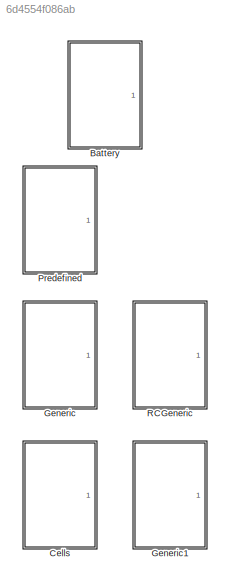
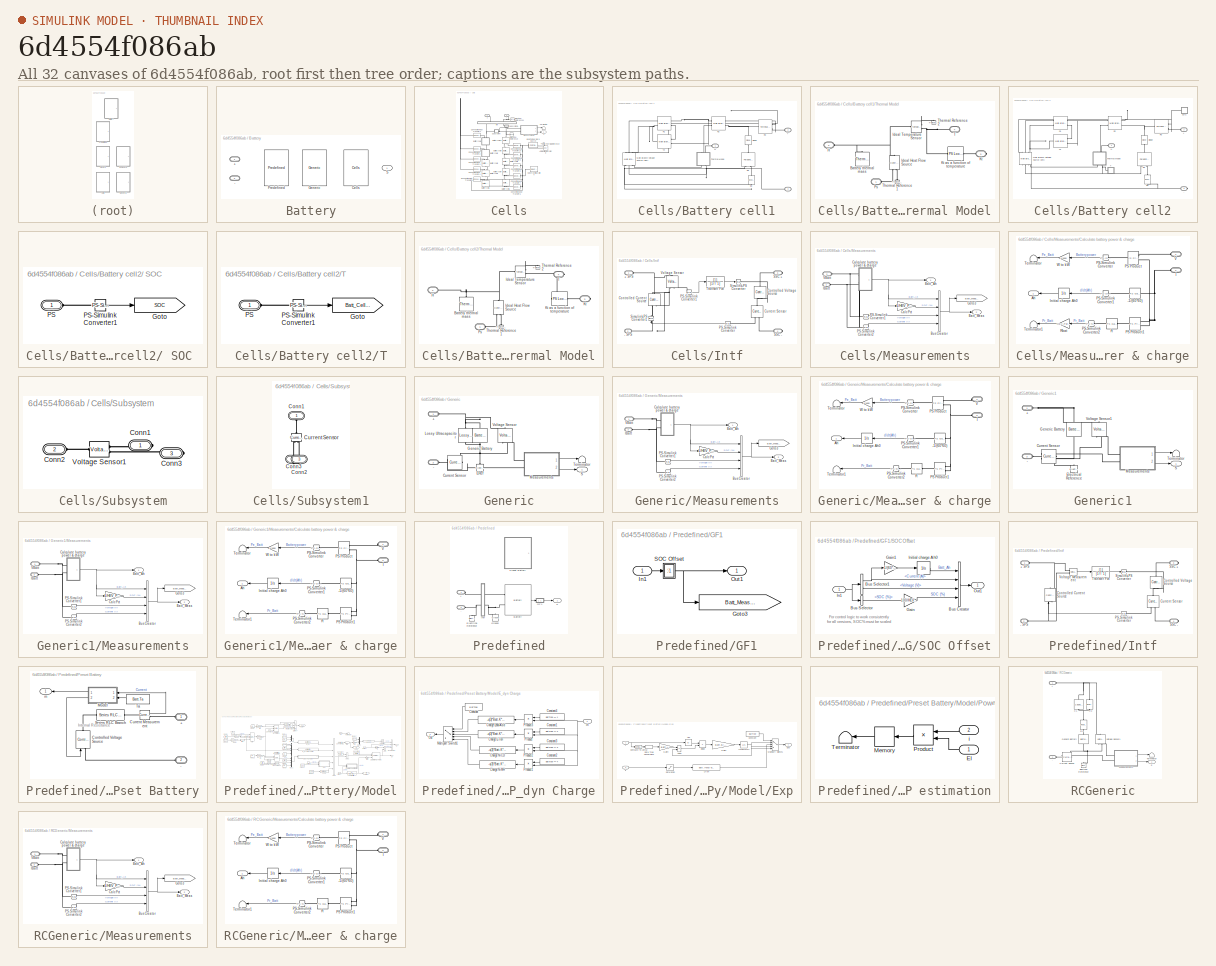
[diagram: thumbnail index - all 32 canvases of the model, root first then tree order]
MODEL slx_6d4554f086ab
KIND library
CONFIG AbsTol = auto
CONFIG EnableMultiTasking = on
CONFIG FixedStep = auto
CONFIG MaxStep = auto
CONFIG MinStep = auto
CONFIG RelTol = 1e-3
CONFIG SampleTimeConstraint = Unconstrained
CONFIG Solver = ode45
CONFIG SolverName = ode45
CONFIG StartTime = 0.0
CONFIG StopTime = 10.0
BLOCK [SubSystem] Battery
  BlockChoice = Predefined
  LabelModeActiveChoice = Predefined
  Ports = [0, 1, 0, 0, 0, 2]
  RequestExecContextInheritance = off
  Variant = on
  VariantControlMode = Label
BLOCK [PMIOPort] Battery/+
  NameLocation = top
  Side = Left
BLOCK [PMIOPort] Battery/-
  NameLocation = top
  Port = 2
  Side = Left
BLOCK [Reference] Battery/Cells  REF=$bdroot/Cells
  Ports = [0, 1, 0, 0, 0, 2]
  SourceBlock = $bdroot/Cells
BLOCK [Reference] Battery/Generic  REF=$bdroot/Generic
  Ports = [0, 1, 0, 0, 0, 2]
  SourceBlock = $bdroot/Generic
BLOCK [Reference] Battery/Predefined  REF=$bdroot/Predefined
  Ports = [0, 1, 0, 0, 0, 2]
  SourceBlock = $bdroot/Predefined
BLOCK [Outport] Battery/S
  VectorParamsAs1DForOutWhenUnconnected = off
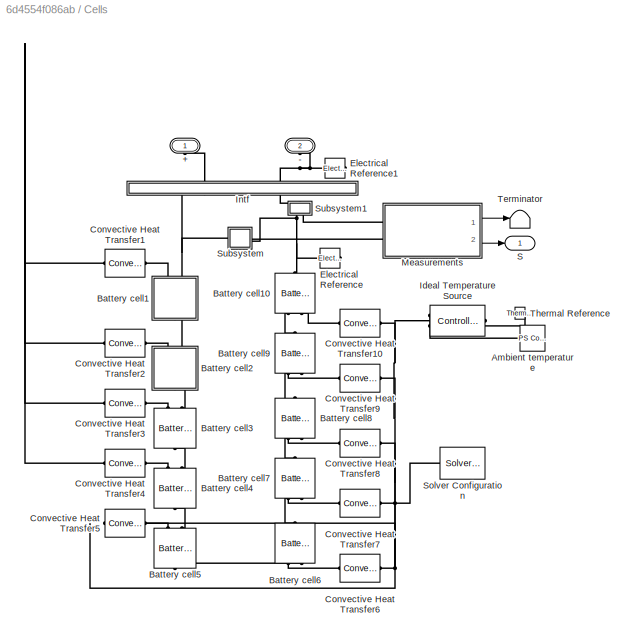
BLOCK [SubSystem] Cells
  Ports = [0, 1, 0, 0, 0, 2]
  RequestExecContextInheritance = off
BLOCK [PMIOPort] Cells/+
  NameLocation = right
  Side = Left
BLOCK [PMIOPort] Cells/-
  NameLocation = right
  Port = 2
  Side = Left
BLOCK [Reference] Cells/Ambient temperature  REF=fl_lib/Physical Signals/Sources/PS Constant
  Ports = [0, 0, 0, 0, 0, 0, 1]
  SourceBlock = fl_lib/Physical Signals/Sources/PS Constant
  SourceProductBaseCode = SS
  SourceType = PS Constant
BLOCK [SubSystem] Cells/Battery cell1
  NameLocation = left
  Ports = [0, 0, 0, 0, 0, 2, 1]
  RequestExecContextInheritance = off
BLOCK [PMIOPort] Cells/Battery cell1/+
  Port = 2
  Side = Left
  Tag = PMCPort
BLOCK [PMIOPort] Cells/Battery cell1/-
  Port = 3
  Side = Right
  Tag = PMCPort
BLOCK [Reference] Cells/Battery cell1/C1  REF=LeadAcidBattery_lib/Main Branch
Capacitance, C1
  Ports = [0, 0, 0, 0, 0, 2, 1]
  SourceBlock = LeadAcidBattery_lib/Main Branch\nCapacitance, C1
  SourceProductBaseCode = SS
  SourceType = Main Branch\nCapacitance, C1
BLOCK [Reference] Cells/Battery cell1/Diode  REF=fl_lib/Electrical/Electrical Elements/Diode
  NameLocation = left
  Ports = [0, 0, 0, 0, 0, 1, 1]
  SourceBlock = fl_lib/Electrical/Electrical Elements/Diode
  SourceProductBaseCode = SS
  SourceType = Diode
BLOCK [Reference] Cells/Battery cell1/Ep  REF=fl_lib/Electrical/Electrical Sources/DC Voltage Source
  NameLocation = right
  Ports = [0, 0, 0, 0, 0, 1, 1]
  SourceBlock = fl_lib/Electrical/Electrical Sources/DC Voltage Source
  SourceProductBaseCode = SS
  SourceType = DC Voltage Source
BLOCK [PMIOPort] Cells/Battery cell1/H
  Side = Left
  Tag = PMCPort
BLOCK [Reference] Cells/Battery cell1/Main Branch Voltage Source (Em)  REF=LeadAcidBattery_lib/Main Branch Voltage
Source, Em
  NameLocation = right
  Ports = [0, 0, 0, 0, 0, 3, 3]
  SourceBlock = LeadAcidBattery_lib/Main Branch Voltage\nSource, Em
  SourceProductBaseCode = SS
  SourceType = Main Branch Voltage\nSource, Em
BLOCK [Reference] Cells/Battery cell1/R0  REF=LeadAcidBattery_lib/Terminal Resistance,
R0
  Ports = [0, 0, 0, 0, 0, 2, 1]
  SourceBlock = LeadAcidBattery_lib/Terminal Resistance,\nR0
  SourceProductBaseCode = SS
  SourceType = Terminal Resistance,\nR0
BLOCK [Reference] Cells/Battery cell1/R1  REF=LeadAcidBattery_lib/Main Branch
Resistance, R1
  Ports = [0, 0, 0, 0, 0, 2, 2]
  SourceBlock = LeadAcidBattery_lib/Main Branch\nResistance, R1
  SourceProductBaseCode = SS
  SourceType = Main Branch\nResistance, R1
BLOCK [Reference] Cells/Battery cell1/R2  REF=LeadAcidBattery_lib/Main Branch
Resistance, R2
  Ports = [0, 0, 0, 0, 0, 2, 2]
  SourceBlock = LeadAcidBattery_lib/Main Branch\nResistance, R2
  SourceProductBaseCode = SS
  SourceType = Main Branch\nResistance, R2
BLOCK [Reference] Cells/Battery cell1/Rp  REF=LeadAcidBattery_lib/Parasitic Branch
Resistance, Rp
  NameLocation = left
  Ports = [0, 0, 0, 0, 0, 1, 2]
  SourceBlock = LeadAcidBattery_lib/Parasitic Branch\nResistance, Rp
  SourceProductBaseCode = SS
  SourceType = Parasitic Branch\nResistance, Rp
BLOCK [SubSystem] Cells/Battery cell1/Thermal Model
  NameLocation = right
  Ports = [0, 0, 0, 0, 0, 2, 2]
  RequestExecContextInheritance = off
BLOCK [Reference] Cells/Battery cell1/Thermal Model/Battery thermal mass  REF=fl_lib/Thermal/Thermal Elements/Thermal Mass
  NameLocation = left
  Ports = [0, 0, 0, 0, 0, 1]
  SourceBlock = fl_lib/Thermal/Thermal Elements/Thermal Mass
  SourceProductBaseCode = SS
  SourceType = Thermal Mass
BLOCK [PMIOPort] Cells/Battery cell1/Thermal Model/H
  Port = 2
  Side = Left
  Tag = PMCPort
BLOCK [Reference] Cells/Battery cell1/Thermal Model/Ideal Heat Flow Source  REF=fl_lib/Thermal/Thermal Sources/Controlled Heat Flow
Rate Source
  NameLocation = right
  Ports = [0, 0, 0, 0, 0, 1, 2]
  SourceBlock = fl_lib/Thermal/Thermal Sources/Controlled Heat Flow\nRate Source
  SourceProductBaseCode = SS
  SourceType = Controlled Heat Flow\nRate Source
BLOCK [Reference] Cells/Battery cell1/Thermal Model/Ideal Temperature Sensor  REF=fl_lib/Thermal/Thermal Sensors/Temperature Sensor
  Ports = [0, 0, 0, 0, 0, 1, 2]
  SourceBlock = fl_lib/Thermal/Thermal Sensors/Temperature Sensor
  SourceProductBaseCode = SS
  SourceType = Temperature Sensor
BLOCK [PMIOPort] Cells/Battery cell1/Thermal Model/Kt
  Port = 3
  Side = Right
  Tag = PMCPort
BLOCK [Reference] Cells/Battery cell1/Thermal Model/Kt as a function of temperature  REF=fl_lib/Physical Signals/Lookup Tables/PS Lookup Table (1D)
  Ports = [0, 0, 0, 0, 0, 1, 1]
  SourceBlock = fl_lib/Physical Signals/Lookup Tables/PS Lookup Table (1D)
  SourceProductBaseCode = SS
  SourceType = PS Lookup Table (1D)
BLOCK [PMIOPort] Cells/Battery cell1/Thermal Model/Ps
  Side = Left
  Tag = PMCPort
BLOCK [PMIOPort] Cells/Battery cell1/Thermal Model/T
  Port = 4
  Side = Right
  Tag = PMCPort
BLOCK [Reference] Cells/Battery cell1/Thermal Model/Thermal Reference1  REF=fl_lib/Thermal/Thermal Elements/Thermal Reference
  NameLocation = right
  Ports = [0, 0, 0, 0, 0, 1]
  SourceBlock = fl_lib/Thermal/Thermal Elements/Thermal Reference
  SourceProductBaseCode = SS
  SourceType = Thermal Reference
BLOCK [Reference] Cells/Battery cell1/Thermal Model/Thermal Reference2  REF=fl_lib/Thermal/Thermal Elements/Thermal Reference
  NameLocation = right
  Ports = [0, 0, 0, 0, 0, 1]
  SourceBlock = fl_lib/Thermal/Thermal Elements/Thermal Reference
  SourceProductBaseCode = SS
  SourceType = Thermal Reference
BLOCK [Reference] Cells/Battery cell10  REF=$bdroot/Cells/Battery
cell1
  NameLocation = left
  Ports = [0, 0, 0, 0, 0, 2, 1]
  SourceBlock = $bdroot/Cells/Battery\ncell1
BLOCK [SubSystem] Cells/Battery cell2
  NameLocation = left
  Ports = [0, 0, 0, 0, 0, 2, 1]
  RequestExecContextInheritance = off
BLOCK [SubSystem] Cells/Battery cell2/ SOC 
  Ports = [0, 0, 0, 0, 0, 1]
  RequestExecContextInheritance = off
BLOCK [Goto] Cells/Battery cell2/ SOC /Goto
  GotoTag = SOC
  TagVisibility = global
BLOCK [PMIOPort] Cells/Battery cell2/ SOC /PS
  Side = Left
BLOCK [Reference] Cells/Battery cell2/ SOC /PS-Simulink Converter1  REF=nesl_utility/PS-Simulink
Converter
  Ports = [0, 1, 0, 0, 0, 1]
  SourceBlock = nesl_utility/PS-Simulink\nConverter
  SourceProductBaseCode = SS
  SourceType = PS-Simulink\nConverter
BLOCK [PMIOPort] Cells/Battery cell2/+
  Port = 2
  Side = Left
  Tag = PMCPort
BLOCK [PMIOPort] Cells/Battery cell2/-
  Port = 3
  Side = Right
  Tag = PMCPort
BLOCK [Reference] Cells/Battery cell2/C1  REF=LeadAcidBattery_lib/Main Branch
Capacitance, C1
  Ports = [0, 0, 0, 0, 0, 2, 1]
  SourceBlock = LeadAcidBattery_lib/Main Branch\nCapacitance, C1
  SourceProductBaseCode = SS
  SourceType = Main Branch\nCapacitance, C1
BLOCK [Reference] Cells/Battery cell2/Diode  REF=fl_lib/Electrical/Electrical Elements/Diode
  NameLocation = left
  Ports = [0, 0, 0, 0, 0, 1, 1]
  SourceBlock = fl_lib/Electrical/Electrical Elements/Diode
  SourceProductBaseCode = SS
  SourceType = Diode
BLOCK [Reference] Cells/Battery cell2/Ep  REF=fl_lib/Electrical/Electrical Sources/DC Voltage Source
  NameLocation = right
  Ports = [0, 0, 0, 0, 0, 1, 1]
  SourceBlock = fl_lib/Electrical/Electrical Sources/DC Voltage Source
  SourceProductBaseCode = SS
  SourceType = DC Voltage Source
BLOCK [PMIOPort] Cells/Battery cell2/H
  Side = Left
  Tag = PMCPort
BLOCK [Reference] Cells/Battery cell2/Main Branch Voltage Source (Em)  REF=LeadAcidBattery_lib/Main Branch Voltage
Source, Em
  NameLocation = right
  Ports = [0, 0, 0, 0, 0, 3, 3]
  SourceBlock = LeadAcidBattery_lib/Main Branch Voltage\nSource, Em
  SourceProductBaseCode = SS
  SourceType = Main Branch Voltage\nSource, Em
BLOCK [Reference] Cells/Battery cell2/R0  REF=LeadAcidBattery_lib/Terminal Resistance,
R0
  Ports = [0, 0, 0, 0, 0, 2, 1]
  SourceBlock = LeadAcidBattery_lib/Terminal Resistance,\nR0
  SourceProductBaseCode = SS
  SourceType = Terminal Resistance,\nR0
BLOCK [Reference] Cells/Battery cell2/R1  REF=LeadAcidBattery_lib/Main Branch
Resistance, R1
  Ports = [0, 0, 0, 0, 0, 2, 2]
  SourceBlock = LeadAcidBattery_lib/Main Branch\nResistance, R1
  SourceProductBaseCode = SS
  SourceType = Main Branch\nResistance, R1
BLOCK [Reference] Cells/Battery cell2/R2  REF=LeadAcidBattery_lib/Main Branch
Resistance, R2
  Ports = [0, 0, 0, 0, 0, 2, 2]
  SourceBlock = LeadAcidBattery_lib/Main Branch\nResistance, R2
  SourceProductBaseCode = SS
  SourceType = Main Branch\nResistance, R2
BLOCK [Reference] Cells/Battery cell2/Rp  REF=LeadAcidBattery_lib/Parasitic Branch
Resistance, Rp
  NameLocation = left
  Ports = [0, 0, 0, 0, 0, 1, 2]
  SourceBlock = LeadAcidBattery_lib/Parasitic Branch\nResistance, Rp
  SourceProductBaseCode = SS
  SourceType = Parasitic Branch\nResistance, Rp
BLOCK [SubSystem] Cells/Battery cell2/T
  Ports = [0, 0, 0, 0, 0, 1]
  RequestExecContextInheritance = off
BLOCK [Goto] Cells/Battery cell2/T/Goto
  GotoTag = Batt_Cell_Temp
  TagVisibility = global
BLOCK [PMIOPort] Cells/Battery cell2/T/PS
  Side = Left
BLOCK [Reference] Cells/Battery cell2/T/PS-Simulink Converter1  REF=nesl_utility/PS-Simulink
Converter
  Ports = [0, 1, 0, 0, 0, 1]
  SourceBlock = nesl_utility/PS-Simulink\nConverter
  SourceProductBaseCode = SS
  SourceType = PS-Simulink\nConverter
BLOCK [SubSystem] Cells/Battery cell2/Thermal Model
  NameLocation = right
  Ports = [0, 0, 0, 0, 0, 2, 2]
  RequestExecContextInheritance = off
BLOCK [Reference] Cells/Battery cell2/Thermal Model/Battery thermal mass  REF=fl_lib/Thermal/Thermal Elements/Thermal Mass
  NameLocation = left
  Ports = [0, 0, 0, 0, 0, 1]
  SourceBlock = fl_lib/Thermal/Thermal Elements/Thermal Mass
  SourceProductBaseCode = SS
  SourceType = Thermal Mass
BLOCK [PMIOPort] Cells/Battery cell2/Thermal Model/H
  Port = 2
  Side = Left
  Tag = PMCPort
BLOCK [Reference] Cells/Battery cell2/Thermal Model/Ideal Heat Flow Source  REF=fl_lib/Thermal/Thermal Sources/Controlled Heat Flow
Rate Source
  NameLocation = right
  Ports = [0, 0, 0, 0, 0, 1, 2]
  SourceBlock = fl_lib/Thermal/Thermal Sources/Controlled Heat Flow\nRate Source
  SourceProductBaseCode = SS
  SourceType = Controlled Heat Flow\nRate Source
BLOCK [Reference] Cells/Battery cell2/Thermal Model/Ideal Temperature Sensor  REF=fl_lib/Thermal/Thermal Sensors/Temperature Sensor
  Ports = [0, 0, 0, 0, 0, 1, 2]
  SourceBlock = fl_lib/Thermal/Thermal Sensors/Temperature Sensor
  SourceProductBaseCode = SS
  SourceType = Temperature Sensor
BLOCK [PMIOPort] Cells/Battery cell2/Thermal Model/Kt
  Port = 3
  Side = Right
  Tag = PMCPort
BLOCK [Reference] Cells/Battery cell2/Thermal Model/Kt as a function of temperature  REF=fl_lib/Physical Signals/Lookup Tables/PS Lookup Table (1D)
  Ports = [0, 0, 0, 0, 0, 1, 1]
  SourceBlock = fl_lib/Physical Signals/Lookup Tables/PS Lookup Table (1D)
  SourceProductBaseCode = SS
  SourceType = PS Lookup Table (1D)
BLOCK [PMIOPort] Cells/Battery cell2/Thermal Model/Ps
  Side = Left
  Tag = PMCPort
BLOCK [PMIOPort] Cells/Battery cell2/Thermal Model/T
  Port = 4
  Side = Right
  Tag = PMCPort
BLOCK [Reference] Cells/Battery cell2/Thermal Model/Thermal Reference1  REF=fl_lib/Thermal/Thermal Elements/Thermal Reference
  NameLocation = right
  Ports = [0, 0, 0, 0, 0, 1]
  SourceBlock = fl_lib/Thermal/Thermal Elements/Thermal Reference
  SourceProductBaseCode = SS
  SourceType = Thermal Reference
BLOCK [Reference] Cells/Battery cell2/Thermal Model/Thermal Reference2  REF=fl_lib/Thermal/Thermal Elements/Thermal Reference
  NameLocation = right
  Ports = [0, 0, 0, 0, 0, 1]
  SourceBlock = fl_lib/Thermal/Thermal Elements/Thermal Reference
  SourceProductBaseCode = SS
  SourceType = Thermal Reference
BLOCK [Reference] Cells/Battery cell3  REF=$bdroot/Cells/Battery
cell1
  NameLocation = right
  Ports = [0, 0, 0, 0, 0, 2, 1]
  SourceBlock = $bdroot/Cells/Battery\ncell1
BLOCK [Reference] Cells/Battery cell4  REF=$bdroot/Cells/Battery
cell1
  NameLocation = right
  Ports = [0, 0, 0, 0, 0, 2, 1]
  SourceBlock = $bdroot/Cells/Battery\ncell1
BLOCK [Reference] Cells/Battery cell5  REF=$bdroot/Cells/Battery
cell1
  NameLocation = right
  Ports = [0, 0, 0, 0, 0, 2, 1]
  SourceBlock = $bdroot/Cells/Battery\ncell1
BLOCK [Reference] Cells/Battery cell6  REF=$bdroot/Cells/Battery
cell1
  NameLocation = right
  Ports = [0, 0, 0, 0, 0, 2, 1]
  SourceBlock = $bdroot/Cells/Battery\ncell1
BLOCK [Reference] Cells/Battery cell7  REF=$bdroot/Cells/Battery
cell1
  NameLocation = right
  Ports = [0, 0, 0, 0, 0, 2, 1]
  SourceBlock = $bdroot/Cells/Battery\ncell1
BLOCK [Reference] Cells/Battery cell8  REF=$bdroot/Cells/Battery
cell1
  NameLocation = right
  Ports = [0, 0, 0, 0, 0, 2, 1]
  SourceBlock = $bdroot/Cells/Battery\ncell1
BLOCK [Reference] Cells/Battery cell9  REF=$bdroot/Cells/Battery
cell1
  NameLocation = right
  Ports = [0, 0, 0, 0, 0, 2, 1]
  SourceBlock = $bdroot/Cells/Battery\ncell1
BLOCK [Reference] Cells/Convective Heat Transfer1  REF=fl_lib/Thermal/Thermal Elements/Convective Heat
Transfer
  NameLocation = top
  Ports = [0, 0, 0, 0, 0, 1, 1]
  SourceBlock = fl_lib/Thermal/Thermal Elements/Convective Heat\nTransfer
  SourceProductBaseCode = SS
  SourceType = Convective Heat\nTransfer
BLOCK [Reference] Cells/Convective Heat Transfer10  REF=fl_lib/Thermal/Thermal Elements/Convective Heat
Transfer
  NameLocation = top
  Ports = [0, 0, 0, 0, 0, 1, 1]
  SourceBlock = fl_lib/Thermal/Thermal Elements/Convective Heat\nTransfer
  SourceProductBaseCode = SS
  SourceType = Convective Heat\nTransfer
BLOCK [Reference] Cells/Convective Heat Transfer2  REF=fl_lib/Thermal/Thermal Elements/Convective Heat
Transfer
  NameLocation = top
  Ports = [0, 0, 0, 0, 0, 1, 1]
  SourceBlock = fl_lib/Thermal/Thermal Elements/Convective Heat\nTransfer
  SourceProductBaseCode = SS
  SourceType = Convective Heat\nTransfer
BLOCK [Reference] Cells/Convective Heat Transfer3  REF=fl_lib/Thermal/Thermal Elements/Convective Heat
Transfer
  NameLocation = top
  Ports = [0, 0, 0, 0, 0, 1, 1]
  SourceBlock = fl_lib/Thermal/Thermal Elements/Convective Heat\nTransfer
  SourceProductBaseCode = SS
  SourceType = Convective Heat\nTransfer
BLOCK [Reference] Cells/Convective Heat Transfer4  REF=fl_lib/Thermal/Thermal Elements/Convective Heat
Transfer
  NameLocation = top
  Ports = [0, 0, 0, 0, 0, 1, 1]
  SourceBlock = fl_lib/Thermal/Thermal Elements/Convective Heat\nTransfer
  SourceProductBaseCode = SS
  SourceType = Convective Heat\nTransfer
BLOCK [Reference] Cells/Convective Heat Transfer5  REF=fl_lib/Thermal/Thermal Elements/Convective Heat
Transfer
  NameLocation = top
  Ports = [0, 0, 0, 0, 0, 1, 1]
  SourceBlock = fl_lib/Thermal/Thermal Elements/Convective Heat\nTransfer
  SourceProductBaseCode = SS
  SourceType = Convective Heat\nTransfer
BLOCK [Reference] Cells/Convective Heat Transfer6  REF=fl_lib/Thermal/Thermal Elements/Convective Heat
Transfer
  NameLocation = top
  Ports = [0, 0, 0, 0, 0, 1, 1]
  SourceBlock = fl_lib/Thermal/Thermal Elements/Convective Heat\nTransfer
  SourceProductBaseCode = SS
  SourceType = Convective Heat\nTransfer
BLOCK [Reference] Cells/Convective Heat Transfer7  REF=fl_lib/Thermal/Thermal Elements/Convective Heat
Transfer
  NameLocation = top
  Ports = [0, 0, 0, 0, 0, 1, 1]
  SourceBlock = fl_lib/Thermal/Thermal Elements/Convective Heat\nTransfer
  SourceProductBaseCode = SS
  SourceType = Convective Heat\nTransfer
BLOCK [Reference] Cells/Convective Heat Transfer8  REF=fl_lib/Thermal/Thermal Elements/Convective Heat
Transfer
  NameLocation = top
  Ports = [0, 0, 0, 0, 0, 1, 1]
  SourceBlock = fl_lib/Thermal/Thermal Elements/Convective Heat\nTransfer
  SourceProductBaseCode = SS
  SourceType = Convective Heat\nTransfer
BLOCK [Reference] Cells/Convective Heat Transfer9  REF=fl_lib/Thermal/Thermal Elements/Convective Heat
Transfer
  NameLocation = top
  Ports = [0, 0, 0, 0, 0, 1, 1]
  SourceBlock = fl_lib/Thermal/Thermal Elements/Convective Heat\nTransfer
  SourceProductBaseCode = SS
  SourceType = Convective Heat\nTransfer
BLOCK [Reference] Cells/Electrical Reference  REF=fl_lib/Electrical/Electrical Elements/Electrical Reference
  NameLocation = top
  Ports = [0, 0, 0, 0, 0, 1]
  SourceBlock = fl_lib/Electrical/Electrical Elements/Electrical Reference
  SourceProductBaseCode = SS
  SourceType = Electrical Reference
BLOCK [Reference] Cells/Electrical Reference1  REF=fl_lib/Electrical/Electrical Elements/Electrical Reference
  NameLocation = top
  Ports = [0, 0, 0, 0, 0, 1]
  SourceBlock = fl_lib/Electrical/Electrical Elements/Electrical Reference
  SourceProductBaseCode = SS
  SourceType = Electrical Reference
BLOCK [Reference] Cells/Ideal Temperature Source  REF=fl_lib/Thermal/Thermal Sources/Controlled
Temperature Source
  Ports = [0, 0, 0, 0, 0, 1, 2]
  SourceBlock = fl_lib/Thermal/Thermal Sources/Controlled\nTemperature Source
  SourceProductBaseCode = SS
  SourceType = Controlled\nTemperature Source
BLOCK [SubSystem] Cells/Intf
  NameLocation = left
  Ports = [0, 0, 0, 0, 0, 2, 2]
  RequestExecContextInheritance = off
BLOCK [PMIOPort] Cells/Intf/+ SPS
  Side = Left
BLOCK [PMIOPort] Cells/Intf/- SPS
  Port = 2
  Side = Left
BLOCK [Reference] Cells/Intf/Controlled Current Source  REF=fl_lib/Electrical/Electrical Sources/Controlled Current
Source
  NameLocation = right
  Ports = [0, 0, 0, 0, 0, 1, 2]
  SourceBlock = fl_lib/Electrical/Electrical Sources/Controlled Current\nSource
  SourceProductBaseCode = SS
  SourceType = Controlled Current\nSource
BLOCK [Reference] Cells/Intf/Controlled Voltage Source  REF=fl_lib/Electrical/Electrical Sources/Controlled Voltage
Source
  NameLocation = left
  Ports = [0, 0, 0, 0, 0, 1, 2]
  SourceBlock = fl_lib/Electrical/Electrical Sources/Controlled Voltage\nSource
  SourceProductBaseCode = SS
  SourceType = Controlled Voltage\nSource
BLOCK [Reference] Cells/Intf/Current Sensor  REF=fl_lib/Electrical/Electrical Sensors/Current Sensor
  NameLocation = left
  Ports = [0, 0, 0, 0, 0, 1, 2]
  SourceBlock = fl_lib/Electrical/Electrical Sensors/Current Sensor
  SourceProductBaseCode = SS
  SourceType = Current Sensor
BLOCK [Reference] Cells/Intf/PS-Simulink Converter  REF=nesl_utility/PS-Simulink
Converter
  Ports = [0, 1, 0, 0, 0, 1]
  SourceBlock = nesl_utility/PS-Simulink\nConverter
  SourceProductBaseCode = SS
  SourceType = PS-Simulink\nConverter
BLOCK [Reference] Cells/Intf/PS-Simulink Converter1  REF=nesl_utility/PS-Simulink
Converter
  NameLocation = top
  Ports = [0, 1, 0, 0, 0, 1]
  SourceBlock = nesl_utility/PS-Simulink\nConverter
  SourceProductBaseCode = SS
  SourceType = PS-Simulink\nConverter
BLOCK [PMIOPort] Cells/Intf/SSC +
  Port = 3
  Side = Right
BLOCK [PMIOPort] Cells/Intf/SSC -
  Port = 4
  Side = Right
BLOCK [Reference] Cells/Intf/Simulink-PS Converter  REF=nesl_utility/Simulink-PS
Converter
  Ports = [1, 0, 0, 0, 0, 0, 1]
  SourceBlock = nesl_utility/Simulink-PS\nConverter
  SourceProductBaseCode = SS
  SourceType = Simulink-PS\nConverter
BLOCK [Reference] Cells/Intf/Simulink-PS Converter1  REF=nesl_utility/Simulink-PS
Converter
  NameLocation = right
  Ports = [1, 0, 0, 0, 0, 0, 1]
  SourceBlock = nesl_utility/Simulink-PS\nConverter
  SourceProductBaseCode = SS
  SourceType = Simulink-PS\nConverter
BLOCK [TransferFcn] Cells/Intf/Transfer Fcn
  Denominator = [1/T 1]
BLOCK [Reference] Cells/Intf/Voltage Sensor  REF=fl_lib/Electrical/Electrical Sensors/Voltage Sensor
  NameLocation = right
  Ports = [0, 0, 0, 0, 0, 1, 2]
  SourceBlock = fl_lib/Electrical/Electrical Sensors/Voltage Sensor
  SourceProductBaseCode = SS
  SourceType = Voltage Sensor
BLOCK [SubSystem] Cells/Measurements
  Ports = [0, 2, 0, 0, 0, 2]
  RequestExecContextInheritance = off
BLOCK [Outport] Cells/Measurements/Batt_Ah
  NameLocation = top
  VectorParamsAs1DForOutWhenUnconnected = off
BLOCK [Outport] Cells/Measurements/Batt_Meas
  NameLocation = top
  Port = 2
  VectorParamsAs1DForOutWhenUnconnected = off
BLOCK [BusCreator] Cells/Measurements/Bus Creator
  DisplayOption = bar
  InheritFromInputs = on
  Inputs = 4
  Ports = [4, 1]
BLOCK [Gain] Cells/Measurements/Calc Pct
  Gain = 1/HEV_Param.Battery_Sys.Maximum_Capacity*100
BLOCK [SubSystem] Cells/Measurements/Calculate battery power & charge
  NameLocation = top
  Ports = [0, 1, 0, 0, 0, 2]
  RequestExecContextInheritance = off
BLOCK [Reference] Cells/Measurements/Calculate battery power & charge/-1//(60*60)  REF=fl_lib/Physical Signals/Functions/PS Gain
  Ports = [0, 0, 0, 0, 0, 1, 1]
  SourceBlock = fl_lib/Physical Signals/Functions/PS Gain
  SourceProductBaseCode = SS
  SourceType = PS Gain
BLOCK [Outport] Cells/Measurements/Calculate battery power & charge/Ah
  VectorParamsAs1DForOutWhenUnconnected = off
BLOCK [PMIOPort] Cells/Measurements/Calculate battery power & charge/I
  Port = 2
  Side = Left
BLOCK [Integrator] Cells/Measurements/Calculate battery power & charge/Initial charge Ah0
  InitialCondition = HEV_Param.Battery_Sys.Maximum_Capacity
  Ports = [1, 1]
BLOCK [Reference] Cells/Measurements/Calculate battery power & charge/PS Product  REF=fl_lib/Physical Signals/Functions/PS Product
  Ports = [0, 0, 0, 0, 0, 2, 1]
  SourceBlock = fl_lib/Physical Signals/Functions/PS Product
  SourceProductBaseCode = SS
  SourceType = PS Product
BLOCK [Reference] Cells/Measurements/Calculate battery power & charge/PS Product1  REF=fl_lib/Physical Signals/Functions/PS Product
  Ports = [0, 0, 0, 0, 0, 2, 1]
  SourceBlock = fl_lib/Physical Signals/Functions/PS Product
  SourceProductBaseCode = SS
  SourceType = PS Product
BLOCK [Reference] Cells/Measurements/Calculate battery power & charge/PS-Simulink Converter  REF=nesl_utility/PS-Simulink
Converter
  Ports = [0, 1, 0, 0, 0, 1]
  SourceBlock = nesl_utility/PS-Simulink\nConverter
  SourceProductBaseCode = SS
  SourceType = PS-Simulink\nConverter
BLOCK [Reference] Cells/Measurements/Calculate battery power & charge/PS-Simulink Converter1  REF=nesl_utility/PS-Simulink
Converter
  Ports = [0, 1, 0, 0, 0, 1]
  SourceBlock = nesl_utility/PS-Simulink\nConverter
  SourceProductBaseCode = SS
  SourceType = PS-Simulink\nConverter
BLOCK [Reference] Cells/Measurements/Calculate battery power & charge/PS-Simulink Converter2  REF=nesl_utility/PS-Simulink
Converter
  Ports = [0, 1, 0, 0, 0, 1]
  SourceBlock = nesl_utility/PS-Simulink\nConverter
  SourceProductBaseCode = SS
  SourceType = PS-Simulink\nConverter
BLOCK [Reference] Cells/Measurements/Calculate battery power & charge/R  REF=fl_lib/Physical Signals/Functions/PS Gain
  Ports = [0, 0, 0, 0, 0, 1, 1]
  SourceBlock = fl_lib/Physical Signals/Functions/PS Gain
  SourceProductBaseCode = SS
  SourceType = PS Gain
BLOCK [Gain] Cells/Measurements/Calculate battery power & charge/Rbat
  Gain = HEV_Param.Battery_Sys.Internal_Resistance
BLOCK [Terminator] Cells/Measurements/Calculate battery power & charge/Terminator
  NameLocation = top
BLOCK [Terminator] Cells/Measurements/Calculate battery power & charge/Terminator1
  NameLocation = top
BLOCK [PMIOPort] Cells/Measurements/Calculate battery power & charge/V
  Side = Left
BLOCK [Gain] Cells/Measurements/Calculate battery power & charge/W to kW
  Gain = 1/1000
BLOCK [Goto] Cells/Measurements/Goto3
  GotoTag = Batt_Measures
  NameLocation = top
  TagVisibility = global
BLOCK [PMIOPort] Cells/Measurements/IBatt
  Side = Left
BLOCK [Reference] Cells/Measurements/PS-Simulink Converter1  REF=nesl_utility/PS-Simulink
Converter
  NameLocation = top
  Ports = [0, 1, 0, 0, 0, 1]
  SourceBlock = nesl_utility/PS-Simulink\nConverter
  SourceProductBaseCode = SS
  SourceType = PS-Simulink\nConverter
BLOCK [Reference] Cells/Measurements/PS-Simulink Converter2  REF=nesl_utility/PS-Simulink
Converter
  NameLocation = top
  Ports = [0, 1, 0, 0, 0, 1]
  SourceBlock = nesl_utility/PS-Simulink\nConverter
  SourceProductBaseCode = SS
  SourceType = PS-Simulink\nConverter
BLOCK [PMIOPort] Cells/Measurements/VBatt
  Port = 2
  Side = Left
BLOCK [Outport] Cells/S
  VectorParamsAs1DForOutWhenUnconnected = off
BLOCK [Reference] Cells/Solver Configuration  REF=nesl_utility/Solver
Configuration
  Ports = [0, 0, 0, 0, 0, 0, 1]
  SourceBlock = nesl_utility/Solver\nConfiguration
  SourceProductBaseCode = SS
  SourceType = Solver\nConfiguration
BLOCK [SubSystem] Cells/Subsystem
  Ports = [0, 0, 0, 0, 0, 1, 2]
  RequestExecContextInheritance = off
BLOCK [PMIOPort] Cells/Subsystem/Conn1
  Side = Right
BLOCK [PMIOPort] Cells/Subsystem/Conn2
  Port = 2
  Side = Left
BLOCK [PMIOPort] Cells/Subsystem/Conn3
  Port = 3
  Side = Right
BLOCK [Reference] Cells/Subsystem/Voltage Sensor1  REF=fl_lib/Electrical/Electrical Sensors/Voltage Sensor
  Ports = [0, 0, 0, 0, 0, 1, 2]
  SourceBlock = fl_lib/Electrical/Electrical Sensors/Voltage Sensor
  SourceProductBaseCode = SS
  SourceType = Voltage Sensor
BLOCK [SubSystem] Cells/Subsystem1
  NameLocation = right
  Ports = [0, 0, 0, 0, 0, 1, 2]
  RequestExecContextInheritance = off
BLOCK [PMIOPort] Cells/Subsystem1/Conn1
  NameLocation = right
  Side = Left
BLOCK [PMIOPort] Cells/Subsystem1/Conn2
  NameLocation = right
  Port = 3
  Side = Right
BLOCK [PMIOPort] Cells/Subsystem1/Conn3
  NameLocation = right
  Port = 2
  Side = Right
BLOCK [Reference] Cells/Subsystem1/Current Sensor  REF=fl_lib/Electrical/Electrical Sensors/Current Sensor
  NameLocation = right
  Ports = [0, 0, 0, 0, 0, 1, 2]
  SourceBlock = fl_lib/Electrical/Electrical Sensors/Current Sensor
  SourceProductBaseCode = SS
  SourceType = Current Sensor
BLOCK [Terminator] Cells/Terminator
BLOCK [Reference] Cells/Thermal Reference  REF=fl_lib/Thermal/Thermal Elements/Thermal Reference
  NameLocation = top
  Ports = [0, 0, 0, 0, 0, 1]
  SourceBlock = fl_lib/Thermal/Thermal Elements/Thermal Reference
  SourceProductBaseCode = SS
  SourceType = Thermal Reference
BLOCK [SubSystem] Generic
  Ports = [0, 1, 0, 0, 0, 2]
  RequestExecContextInheritance = off
BLOCK [PMIOPort] Generic/+
  NameLocation = top
  Side = Left
BLOCK [PMIOPort] Generic/-
  NameLocation = top
  Port = 2
  Side = Left
BLOCK [Reference] Generic/Current Sensor  REF=fl_lib/Electrical/Electrical Sensors/Current Sensor
  Ports = [0, 0, 0, 0, 0, 1, 2]
  SourceBlock = fl_lib/Electrical/Electrical Sensors/Current Sensor
  SourceProductBaseCode = SS
  SourceType = Current Sensor
BLOCK [Reference] Generic/ERef  REF=fl_lib/Electrical/Electrical Elements/Electrical Reference
  NameLocation = right
  Ports = [0, 0, 0, 0, 0, 1]
  SourceBlock = fl_lib/Electrical/Electrical Elements/Electrical Reference
  SourceProductBaseCode = SS
  SourceType = Electrical Reference
BLOCK [Reference] Generic/Generic Battery  REF=ee_lib/Sources/Battery
  NameLocation = right
  Ports = [0, 0, 0, 0, 0, 1, 1]
  SourceBlock = ee_lib/Sources/Battery
  SourceProductBaseCode = PS
  SourceType = Battery
BLOCK [Reference] Generic/Lossy Ultracapacitor  REF=Capacitors_lib/Lossy Ultracapacitor
  NameLocation = left
  Ports = [0, 0, 0, 0, 0, 1, 1]
  SourceBlock = Capacitors_lib/Lossy Ultracapacitor
  SourceProductBaseCode = SS
  SourceType = Lossy Ultracapacitor
BLOCK [SubSystem] Generic/Measurements
  Ports = [0, 2, 0, 0, 0, 2]
  RequestExecContextInheritance = off
BLOCK [Outport] Generic/Measurements/Batt_Ah
  NameLocation = top
  VectorParamsAs1DForOutWhenUnconnected = off
BLOCK [Outport] Generic/Measurements/Batt_Meas
  NameLocation = top
  Port = 2
  VectorParamsAs1DForOutWhenUnconnected = off
BLOCK [BusCreator] Generic/Measurements/Bus Creator
  DisplayOption = bar
  InheritFromInputs = on
  Inputs = 4
  Ports = [4, 1]
BLOCK [Gain] Generic/Measurements/Calc Pct
  Gain = 1/HEV_Param.Battery_Sys.Maximum_Capacity*100
BLOCK [SubSystem] Generic/Measurements/Calculate battery power & charge
  NameLocation = top
  Ports = [0, 1, 0, 0, 0, 2]
  RequestExecContextInheritance = off
BLOCK [Reference] Generic/Measurements/Calculate battery power & charge/-1//(60*60)  REF=fl_lib/Physical Signals/Functions/PS Gain
  Ports = [0, 0, 0, 0, 0, 1, 1]
  SourceBlock = fl_lib/Physical Signals/Functions/PS Gain
  SourceProductBaseCode = SS
  SourceType = PS Gain
BLOCK [Outport] Generic/Measurements/Calculate battery power & charge/Ah
  VectorParamsAs1DForOutWhenUnconnected = off
BLOCK [PMIOPort] Generic/Measurements/Calculate battery power & charge/I
  Port = 2
  Side = Left
BLOCK [Integrator] Generic/Measurements/Calculate battery power & charge/Initial charge Ah0
  InitialCondition = HEV_Param.Battery_Sys.Maximum_Capacity
  Ports = [1, 1]
BLOCK [Reference] Generic/Measurements/Calculate battery power & charge/PS Product  REF=fl_lib/Physical Signals/Functions/PS Product
  Ports = [0, 0, 0, 0, 0, 2, 1]
  SourceBlock = fl_lib/Physical Signals/Functions/PS Product
  SourceProductBaseCode = SS
  SourceType = PS Product
BLOCK [Reference] Generic/Measurements/Calculate battery power & charge/PS Product1  REF=fl_lib/Physical Signals/Functions/PS Product
  Ports = [0, 0, 0, 0, 0, 2, 1]
  SourceBlock = fl_lib/Physical Signals/Functions/PS Product
  SourceProductBaseCode = SS
  SourceType = PS Product
BLOCK [Reference] Generic/Measurements/Calculate battery power & charge/PS-Simulink Converter  REF=nesl_utility/PS-Simulink
Converter
  Ports = [0, 1, 0, 0, 0, 1]
  SourceBlock = nesl_utility/PS-Simulink\nConverter
  SourceProductBaseCode = SS
  SourceType = PS-Simulink\nConverter
BLOCK [Reference] Generic/Measurements/Calculate battery power & charge/PS-Simulink Converter1  REF=nesl_utility/PS-Simulink
Converter
  Ports = [0, 1, 0, 0, 0, 1]
  SourceBlock = nesl_utility/PS-Simulink\nConverter
  SourceProductBaseCode = SS
  SourceType = PS-Simulink\nConverter
BLOCK [Reference] Generic/Measurements/Calculate battery power & charge/PS-Simulink Converter2  REF=nesl_utility/PS-Simulink
Converter
  Ports = [0, 1, 0, 0, 0, 1]
  SourceBlock = nesl_utility/PS-Simulink\nConverter
  SourceProductBaseCode = SS
  SourceType = PS-Simulink\nConverter
BLOCK [Reference] Generic/Measurements/Calculate battery power & charge/R  REF=fl_lib/Physical Signals/Functions/PS Gain
  Ports = [0, 0, 0, 0, 0, 1, 1]
  SourceBlock = fl_lib/Physical Signals/Functions/PS Gain
  SourceProductBaseCode = SS
  SourceType = PS Gain
BLOCK [Terminator] Generic/Measurements/Calculate battery power & charge/Terminator
  NameLocation = top
BLOCK [Terminator] Generic/Measurements/Calculate battery power & charge/Terminator1
  NameLocation = top
BLOCK [PMIOPort] Generic/Measurements/Calculate battery power & charge/V
  Side = Left
BLOCK [Gain] Generic/Measurements/Calculate battery power & charge/W to kW
  Gain = 1/1000
BLOCK [Goto] Generic/Measurements/Goto3
  GotoTag = Batt_Measures
  NameLocation = top
  TagVisibility = global
BLOCK [PMIOPort] Generic/Measurements/IBatt
  Port = 2
  Side = Left
BLOCK [Reference] Generic/Measurements/PS-Simulink Converter1  REF=nesl_utility/PS-Simulink
Converter
  NameLocation = top
  Ports = [0, 1, 0, 0, 0, 1]
  SourceBlock = nesl_utility/PS-Simulink\nConverter
  SourceProductBaseCode = SS
  SourceType = PS-Simulink\nConverter
BLOCK [Reference] Generic/Measurements/PS-Simulink Converter2  REF=nesl_utility/PS-Simulink
Converter
  NameLocation = top
  Ports = [0, 1, 0, 0, 0, 1]
  SourceBlock = nesl_utility/PS-Simulink\nConverter
  SourceProductBaseCode = SS
  SourceType = PS-Simulink\nConverter
BLOCK [PMIOPort] Generic/Measurements/VBatt
  Side = Left
BLOCK [Outport] Generic/S
  VectorParamsAs1DForOutWhenUnconnected = off
BLOCK [Terminator] Generic/Terminator
BLOCK [Reference] Generic/Voltage Sensor  REF=fl_lib/Electrical/Electrical Sensors/Voltage Sensor
  NameLocation = right
  Ports = [0, 0, 0, 0, 0, 1, 2]
  SourceBlock = fl_lib/Electrical/Electrical Sensors/Voltage Sensor
  SourceProductBaseCode = SS
  SourceType = Voltage Sensor
BLOCK [SubSystem] Generic1
  Ports = [0, 1, 0, 0, 0, 2]
  RequestExecContextInheritance = off
BLOCK [PMIOPort] Generic1/+
  NameLocation = top
  Side = Left
BLOCK [PMIOPort] Generic1/-
  NameLocation = top
  Port = 2
  Side = Left
BLOCK [Reference] Generic1/Current Sensor  REF=fl_lib/Electrical/Electrical Sensors/Current Sensor
  NameLocation = top
  Ports = [0, 0, 0, 0, 0, 1, 2]
  SourceBlock = fl_lib/Electrical/Electrical Sensors/Current Sensor
  SourceProductBaseCode = SS
  SourceType = Current Sensor
BLOCK [Reference] Generic1/Electrical Reference  REF=fl_lib/Electrical/Electrical Elements/Electrical Reference
  NameLocation = right
  Ports = [0, 0, 0, 0, 0, 1]
  SourceBlock = fl_lib/Electrical/Electrical Elements/Electrical Reference
  SourceProductBaseCode = SS
  SourceType = Electrical Reference
BLOCK [Reference] Generic1/Generic Battery  REF=ee_lib/Sources/Battery
  NameLocation = right
  Ports = [0, 0, 0, 0, 0, 1, 1]
  SourceBlock = ee_lib/Sources/Battery
  SourceProductBaseCode = PS
  SourceType = Battery
BLOCK [SubSystem] Generic1/Measurements
  Ports = [0, 2, 0, 0, 0, 2]
  RequestExecContextInheritance = off
BLOCK [Outport] Generic1/Measurements/Batt_Ah
  NameLocation = top
  VectorParamsAs1DForOutWhenUnconnected = off
BLOCK [Outport] Generic1/Measurements/Batt_Meas
  NameLocation = top
  Port = 2
  VectorParamsAs1DForOutWhenUnconnected = off
BLOCK [BusCreator] Generic1/Measurements/Bus Creator
  DisplayOption = bar
  InheritFromInputs = on
  Inputs = 4
  Ports = [4, 1]
BLOCK [Gain] Generic1/Measurements/Calc Pct
  Gain = 1/HEV_Param.Battery_Sys.Maximum_Capacity*100
BLOCK [SubSystem] Generic1/Measurements/Calculate battery power & charge
  NameLocation = top
  Ports = [0, 1, 0, 0, 0, 2]
  RequestExecContextInheritance = off
BLOCK [Reference] Generic1/Measurements/Calculate battery power & charge/-1//(60*60)  REF=fl_lib/Physical Signals/Functions/PS Gain
  Ports = [0, 0, 0, 0, 0, 1, 1]
  SourceBlock = fl_lib/Physical Signals/Functions/PS Gain
  SourceProductBaseCode = SS
  SourceType = PS Gain
BLOCK [Outport] Generic1/Measurements/Calculate battery power & charge/Ah
  VectorParamsAs1DForOutWhenUnconnected = off
BLOCK [PMIOPort] Generic1/Measurements/Calculate battery power & charge/I
  Port = 2
  Side = Left
BLOCK [Integrator] Generic1/Measurements/Calculate battery power & charge/Initial charge Ah0
  InitialCondition = HEV_Param.Battery_Sys.Maximum_Capacity
  Ports = [1, 1]
BLOCK [Reference] Generic1/Measurements/Calculate battery power & charge/PS Product  REF=fl_lib/Physical Signals/Functions/PS Product
  Ports = [0, 0, 0, 0, 0, 2, 1]
  SourceBlock = fl_lib/Physical Signals/Functions/PS Product
  SourceProductBaseCode = SS
  SourceType = PS Product
BLOCK [Reference] Generic1/Measurements/Calculate battery power & charge/PS Product1  REF=fl_lib/Physical Signals/Functions/PS Product
  Ports = [0, 0, 0, 0, 0, 2, 1]
  SourceBlock = fl_lib/Physical Signals/Functions/PS Product
  SourceProductBaseCode = SS
  SourceType = PS Product
BLOCK [Reference] Generic1/Measurements/Calculate battery power & charge/PS-Simulink Converter  REF=nesl_utility/PS-Simulink
Converter
  Ports = [0, 1, 0, 0, 0, 1]
  SourceBlock = nesl_utility/PS-Simulink\nConverter
  SourceProductBaseCode = SS
  SourceType = PS-Simulink\nConverter
BLOCK [Reference] Generic1/Measurements/Calculate battery power & charge/PS-Simulink Converter1  REF=nesl_utility/PS-Simulink
Converter
  Ports = [0, 1, 0, 0, 0, 1]
  SourceBlock = nesl_utility/PS-Simulink\nConverter
  SourceProductBaseCode = SS
  SourceType = PS-Simulink\nConverter
BLOCK [Reference] Generic1/Measurements/Calculate battery power & charge/PS-Simulink Converter2  REF=nesl_utility/PS-Simulink
Converter
  Ports = [0, 1, 0, 0, 0, 1]
  SourceBlock = nesl_utility/PS-Simulink\nConverter
  SourceProductBaseCode = SS
  SourceType = PS-Simulink\nConverter
BLOCK [Reference] Generic1/Measurements/Calculate battery power & charge/R  REF=fl_lib/Physical Signals/Functions/PS Gain
  Ports = [0, 0, 0, 0, 0, 1, 1]
  SourceBlock = fl_lib/Physical Signals/Functions/PS Gain
  SourceProductBaseCode = SS
  SourceType = PS Gain
BLOCK [Terminator] Generic1/Measurements/Calculate battery power & charge/Terminator
  NameLocation = top
BLOCK [Terminator] Generic1/Measurements/Calculate battery power & charge/Terminator1
  NameLocation = top
BLOCK [PMIOPort] Generic1/Measurements/Calculate battery power & charge/V
  Side = Left
BLOCK [Gain] Generic1/Measurements/Calculate battery power & charge/W to kW
  Gain = 1/1000
BLOCK [Goto] Generic1/Measurements/Goto3
  GotoTag = Batt_Measures
  NameLocation = top
  TagVisibility = global
BLOCK [PMIOPort] Generic1/Measurements/IBatt
  Port = 2
  Side = Left
BLOCK [Reference] Generic1/Measurements/PS-Simulink Converter1  REF=nesl_utility/PS-Simulink
Converter
  NameLocation = top
  Ports = [0, 1, 0, 0, 0, 1]
  SourceBlock = nesl_utility/PS-Simulink\nConverter
  SourceProductBaseCode = SS
  SourceType = PS-Simulink\nConverter
BLOCK [Reference] Generic1/Measurements/PS-Simulink Converter2  REF=nesl_utility/PS-Simulink
Converter
  NameLocation = top
  Ports = [0, 1, 0, 0, 0, 1]
  SourceBlock = nesl_utility/PS-Simulink\nConverter
  SourceProductBaseCode = SS
  SourceType = PS-Simulink\nConverter
BLOCK [PMIOPort] Generic1/Measurements/VBatt
  Side = Left
BLOCK [Outport] Generic1/S
  VectorParamsAs1DForOutWhenUnconnected = off
BLOCK [Terminator] Generic1/Terminator
BLOCK [Reference] Generic1/Voltage Sensor1  REF=fl_lib/Electrical/Electrical Sensors/Voltage Sensor
  NameLocation = right
  Ports = [0, 0, 0, 0, 0, 1, 2]
  SourceBlock = fl_lib/Electrical/Electrical Sensors/Voltage Sensor
  SourceProductBaseCode = SS
  SourceType = Voltage Sensor
BLOCK [SubSystem] Predefined
  Ports = [0, 1, 0, 0, 0, 2]
  RequestExecContextInheritance = off
BLOCK [PMIOPort] Predefined/+
  NameLocation = top
  Side = Left
BLOCK [PMIOPort] Predefined/-
  NameLocation = top
  Port = 2
  Side = Left
BLOCK [Reference] Predefined/Battery  REF=electricdrivelib/Extra Sources/Battery
  Ports = [0, 1, 0, 0, 0, 2]
  SourceBlock = electricdrivelib/Extra Sources/Battery
  SourceProductBaseCode = PS
  SourceType = Battery
BLOCK [Reference] Predefined/Electrical Reference  REF=fl_lib/Electrical/Electrical Elements/Electrical Reference
  NameLocation = right
  Ports = [0, 0, 0, 0, 0, 1]
  SourceBlock = fl_lib/Electrical/Electrical Elements/Electrical Reference
  SourceProductBaseCode = SS
  SourceType = Electrical Reference
BLOCK [SubSystem] Predefined/GF1
  Ports = [1, 1]
  RequestExecContextInheritance = off
BLOCK [Goto] Predefined/GF1/Goto3
  GotoTag = Batt_Measures
  NameLocation = top
  TagVisibility = global
BLOCK [Inport] Predefined/GF1/In1
BLOCK [Outport] Predefined/GF1/Out1
  VectorParamsAs1DForOutWhenUnconnected = off
BLOCK [SubSystem] Predefined/GF1/SOC Offset
  Ports = [1, 1]
  RequestExecContextInheritance = off
BLOCK [BusCreator] Predefined/GF1/SOC Offset/Bus Creator
  DisplayOption = bar
  InheritFromInputs = on
  Inputs = 4
  Ports = [4, 1]
BLOCK [BusSelector] Predefined/GF1/SOC Offset/Bus Selector
  OutputSignals = SOC (%)
  Ports = [1, 1]
BLOCK [BusSelector] Predefined/GF1/SOC Offset/Bus Selector1
  OutputSignals = Current (A),Voltage (V)
  Ports = [1, 2]
BLOCK [Gain] Predefined/GF1/SOC Offset/Gain
  Gain = 100/HEV_Param.Battery_Det.Initial_SOC
BLOCK [Gain] Predefined/GF1/SOC Offset/Gain1
  Gain = -1/(60*60)
  NameLocation = top
BLOCK [Inport] Predefined/GF1/SOC Offset/In1
BLOCK [Integrator] Predefined/GF1/SOC Offset/Initial charge Ah0
  InitialCondition = HEV_Param.Battery_Det.Rated_Capacity*HEV_Param.Battery_Det.Initial_SOC/100
  NameLocation = top
  Ports = [1, 1]
BLOCK [Outport] Predefined/GF1/SOC Offset/Out1
  VectorParamsAs1DForOutWhenUnconnected = off
BLOCK [Reference] Predefined/Ground  REF=powerlib/Elements/Ground
  NameLocation = right
  Ports = [0, 0, 0, 0, 0, 1]
  SourceBlock = powerlib/Elements/Ground
  SourceProductBaseCode = PS
  SourceType = Ground
BLOCK [SubSystem] Predefined/Intf
  Ports = [0, 0, 0, 0, 0, 2, 2]
  RequestExecContextInheritance = off
BLOCK [PMIOPort] Predefined/Intf/+ SPS
  Side = Left
BLOCK [PMIOPort] Predefined/Intf/- SPS
  Port = 2
  Side = Left
BLOCK [Reference] Predefined/Intf/Controlled Current Source  REF=powerlib/Electrical
Sources/Controlled Current Source
  NameLocation = left
  Ports = [1, 0, 0, 0, 0, 1, 1]
  SourceBlock = powerlib/Electrical\nSources/Controlled Current Source
  SourceProductBaseCode = PS
  SourceType = Controlled Current Source
BLOCK [Reference] Predefined/Intf/Controlled Voltage Source  REF=fl_lib/Electrical/Electrical Sources/Controlled Voltage
Source
  NameLocation = left
  Ports = [0, 0, 0, 0, 0, 1, 2]
  SourceBlock = fl_lib/Electrical/Electrical Sources/Controlled Voltage\nSource
  SourceProductBaseCode = SS
  SourceType = Controlled Voltage\nSource
BLOCK [Reference] Predefined/Intf/Current Sensor  REF=fl_lib/Electrical/Electrical Sensors/Current Sensor
  NameLocation = left
  Ports = [0, 0, 0, 0, 0, 1, 2]
  SourceBlock = fl_lib/Electrical/Electrical Sensors/Current Sensor
  SourceProductBaseCode = SS
  SourceType = Current Sensor
BLOCK [Reference] Predefined/Intf/PS-Simulink Converter  REF=nesl_utility/PS-Simulink
Converter
  Ports = [0, 1, 0, 0, 0, 1]
  SourceBlock = nesl_utility/PS-Simulink\nConverter
  SourceProductBaseCode = SS
  SourceType = PS-Simulink\nConverter
BLOCK [PMIOPort] Predefined/Intf/SSC +
  Port = 3
  Side = Right
BLOCK [PMIOPort] Predefined/Intf/SSC -
  Port = 4
  Side = Right
BLOCK [Reference] Predefined/Intf/Simulink-PS Converter  REF=nesl_utility/Simulink-PS
Converter
  Ports = [1, 0, 0, 0, 0, 0, 1]
  SourceBlock = nesl_utility/Simulink-PS\nConverter
  SourceProductBaseCode = SS
  SourceType = Simulink-PS\nConverter
BLOCK [TransferFcn] Predefined/Intf/Transfer Fcn
  Denominator = [1/T 1]
BLOCK [Reference] Predefined/Intf/Voltage Measurement  REF=powerlib/Measurements/Voltage Measurement
  Ports = [0, 1, 0, 0, 0, 2]
  SourceBlock = powerlib/Measurements/Voltage Measurement
  SourceProductBaseCode = PS
  SourceType = Voltage Measurement
BLOCK [SubSystem] Predefined/Preset Battery
  AncestorBlock = electricdrivelib/Extra Sources/Battery
  CloseFcn = sps_rtmsupport('CloseFcn',gcbh);
  Commented = on
  CopyFcn = sps_rtmsupport('CopyFcn',gcbh);
  DeleteFcn = sps_rtmsupport('DeleteFcn',gcbh);
  DialogController = POWERSYS.PowerSysDialog
  InitFcn = BatteryCback(gcb,1)
  LoadFcn = sps_rtmsupport('LoadFcn',gcbh); BatteryLoadFcn(gcb)
  ModelCloseFcn = sps_rtmsupport('ModelCloseFcn',gcbh);
  NameChangeFcn = sps_rtmsupport('NameChangeFcn',gcbh);
  OpenFcn = sps_rtmsupport('OpenFcn',gcbh, [1,2,3,4,9,18]);
  Ports = [0, 1, 0, 0, 0, 2]
  PostSaveFcn = sps_rtmsupport('PostSaveFcn',gcbh);
  PreCopyFcn = sps_rtmsupport('PreCopyFcn',gcbh);
  PreDeleteFcn = sps_rtmsupport('PreDeleteFcn',gcbh);
  PreSaveFcn = sps_rtmsupport('PreSaveFcn',gcbh);
  RequestExecContextInheritance = off
  StartFcn = sps_rtmsupport('StartFcn',gcbh);
  StopFcn = sps_rtmsupport('StopFcn',gcbh);
  UndoDeleteFcn = sps_rtmsupport('UndoDeleteFcn',gcbh);
BLOCK [PMIOPort] Predefined/Preset Battery/+
  NameLocation = top
  Side = Left
  Tag = PMCPort
BLOCK [PMIOPort] Predefined/Preset Battery/-
  NameLocation = top
  Port = 2
  Side = Left
  Tag = PMCPort
BLOCK [Reference] Predefined/Preset Battery/Controlled Voltage Source  REF=powerlib/Electrical
Sources/Controlled Voltage Source
  NameLocation = right
  Ports = [1, 0, 0, 0, 0, 1, 1]
  SourceBlock = powerlib/Electrical\nSources/Controlled Voltage Source
  SourceProductBaseCode = PS
  SourceType = Controlled Voltage Source
BLOCK [Reference] Predefined/Preset Battery/Current Measurement  REF=powerlib/Measurements/Current Measurement
  Ports = [0, 1, 0, 0, 0, 1, 1]
  SourceBlock = powerlib/Measurements/Current Measurement
  SourceProductBaseCode = PS
  SourceType = Current Measurement
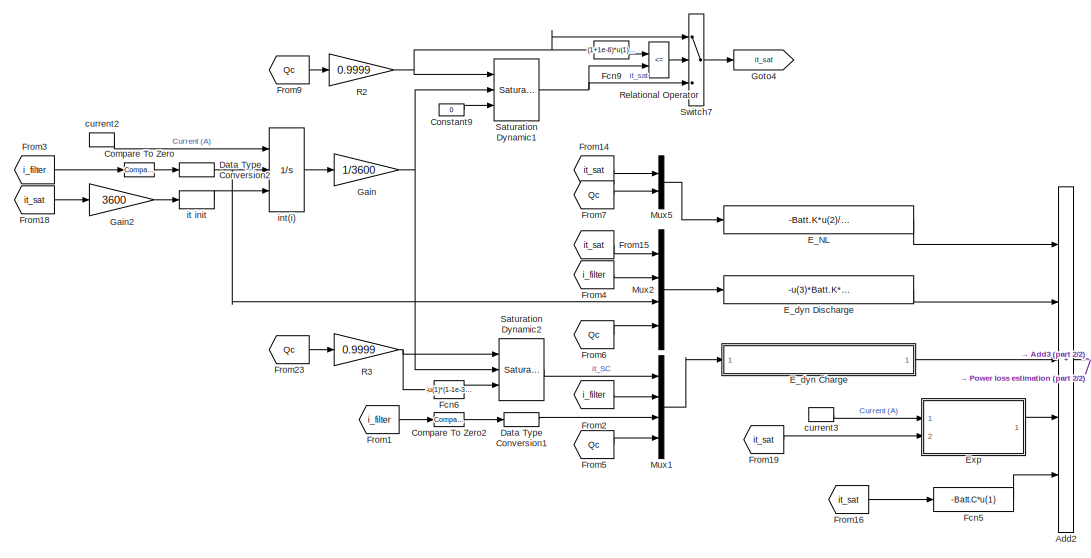
[diagram: Predefined/Preset Battery/Model - part 1/2, left side, full height]
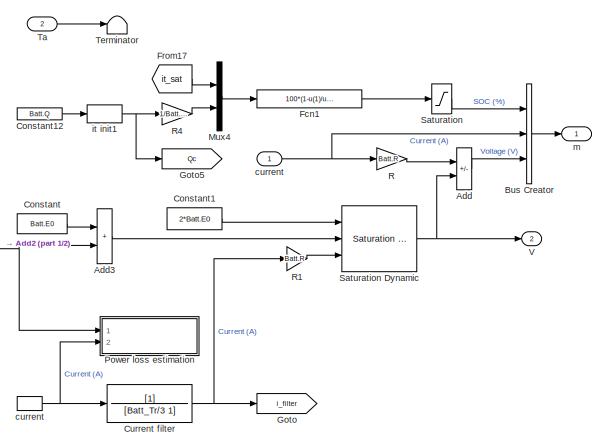
[diagram: Predefined/Preset Battery/Model - part 2/2, right side, full height]
BLOCK [SubSystem] Predefined/Preset Battery/Model
  AncestorBlock = spsBatteryModel/Continuous
  NameLocation = top
  Ports = [2, 2]
  RequestExecContextInheritance = off
BLOCK [Sum] Predefined/Preset Battery/Model/Add
  IconShape = rectangular
  Inputs = -+
  Ports = [2, 1]
BLOCK [Sum] Predefined/Preset Battery/Model/Add2
  IconShape = rectangular
  Inputs = +++++
  Ports = [5, 1]
BLOCK [Sum] Predefined/Preset Battery/Model/Add3
  IconShape = rectangular
  Ports = [2, 1]
BLOCK [BusCreator] Predefined/Preset Battery/Model/Bus Creator
  DisplayOption = bar
  InheritFromInputs = on
  Inputs = 3
  Ports = [3, 1]
BLOCK [Reference] Predefined/Preset Battery/Model/Compare To Zero  REF=simulink/Logic and Bit
Operations/Compare
To Zero
  Ports = [1, 1]
  SourceBlock = simulink/Logic and Bit\nOperations/Compare\nTo Zero
  SourceProductBaseCode = SL
  SourceType = Compare To Zero
BLOCK [Reference] Predefined/Preset Battery/Model/Compare To Zero2  REF=simulink/Logic and Bit
Operations/Compare
To Zero
  Ports = [1, 1]
  SourceBlock = simulink/Logic and Bit\nOperations/Compare\nTo Zero
  SourceProductBaseCode = SL
  SourceType = Compare To Zero
BLOCK [Constant] Predefined/Preset Battery/Model/Constant
  NameLocation = top
  Value = Batt.E0
BLOCK [Constant] Predefined/Preset Battery/Model/Constant1
  NameLocation = top
  Value = 2*Batt.E0
BLOCK [Constant] Predefined/Preset Battery/Model/Constant12
  Value = Batt.Q
BLOCK [Constant] Predefined/Preset Battery/Model/Constant9
  Value = 0
BLOCK [TransferFcn] Predefined/Preset Battery/Model/Current filter
  Denominator = [Batt_Tr/3 1]
BLOCK [DataTypeConversion] Predefined/Preset Battery/Model/Data Type Conversion1
  RndMeth = Floor
  SaturateOnIntegerOverflow = off
BLOCK [DataTypeConversion] Predefined/Preset Battery/Model/Data Type Conversion2
  RndMeth = Floor
  SaturateOnIntegerOverflow = off
BLOCK [Fcn] Predefined/Preset Battery/Model/E_NL
  Expr = -Batt.K*u(2)/(u(2)-u(1))*u(1)
  NameLocation = top
BLOCK [SubSystem] Predefined/Preset Battery/Model/E_dyn Charge
  NameLocation = top
  Ports = [1, 1]
  RequestExecContextInheritance = off
BLOCK [Fcn] Predefined/Preset Battery/Model/E_dyn Charge/Charge Lead-Acid
  Expr = -u(3)*Batt.K*u(2)*(Batt.Q/(u(1)+Batt.Q*Batt.kc))
BLOCK [Fcn] Predefined/Preset Battery/Model/E_dyn Charge/Charge Li-Ion
  Expr = -u(3)*Batt.K*u(2)*u(4)/(u(1)+u(4)*Batt.kc)
BLOCK [Fcn] Predefined/Preset Battery/Model/E_dyn Charge/Charge NiCD
  Expr = -u(3)*Batt.K*u(2)*(Batt.Q/(abs(u(1))+Batt.Q*Batt.kc))
BLOCK [Fcn] Predefined/Preset Battery/Model/E_dyn Charge/Charge NiMH
  Expr = -u(3)*Batt.K*u(2)*(Batt.Q/(abs(u(1))+Batt.Q*Batt.kc))
BLOCK [Constant] Predefined/Preset Battery/Model/E_dyn Charge/Constant
  NameLocation = top
  Value = BatType
BLOCK [Constant] Predefined/Preset Battery/Model/E_dyn Charge/Constant1
  NameLocation = top
  OutDataTypeStr = double
  Value = BatType == 2
BLOCK [Constant] Predefined/Preset Battery/Model/E_dyn Charge/Constant2
  NameLocation = top
  OutDataTypeStr = double
  Value = BatType == 4
BLOCK [Constant] Predefined/Preset Battery/Model/E_dyn Charge/Constant3
  NameLocation = top
  OutDataTypeStr = double
  Value = BatType == 3
BLOCK [Constant] Predefined/Preset Battery/Model/E_dyn Charge/Constant4
  NameLocation = top
  OutDataTypeStr = double
  Value = BatType == 1
BLOCK [Inport] Predefined/Preset Battery/Model/E_dyn Charge/In
BLOCK [MultiPortSwitch] Predefined/Preset Battery/Model/E_dyn Charge/Multiport Switch1
  InputSameDT = off
  Inputs = 4
  NameLocation = top
  Ports = [5, 1]
  SaturateOnIntegerOverflow = off
BLOCK [Outport] Predefined/Preset Battery/Model/E_dyn Charge/Out
  VectorParamsAs1DForOutWhenUnconnected = off
BLOCK [Product] Predefined/Preset Battery/Model/E_dyn Charge/Product
  NameLocation = top
  Ports = [2, 1]
  RndMeth = Zero
BLOCK [Product] Predefined/Preset Battery/Model/E_dyn Charge/Product1
  NameLocation = top
  Ports = [2, 1]
  RndMeth = Zero
BLOCK [Product] Predefined/Preset Battery/Model/E_dyn Charge/Product2
  NameLocation = top
  Ports = [2, 1]
  RndMeth = Zero
BLOCK [Product] Predefined/Preset Battery/Model/E_dyn Charge/Product3
  NameLocation = top
  Ports = [2, 1]
  RndMeth = Zero
BLOCK [Fcn] Predefined/Preset Battery/Model/E_dyn Discharge
  Expr = -u(3)*Batt.K*u(2)*u(4)/(u(4)-u(1))
  NameLocation = top
BLOCK [SubSystem] Predefined/Preset Battery/Model/Exp
  NameLocation = top
  Ports = [2, 1]
  RequestExecContextInheritance = off
BLOCK [Abs] Predefined/Preset Battery/Model/Exp/Abs
  SaturateOnIntegerOverflow = off
BLOCK [Sum] Predefined/Preset Battery/Model/Exp/Add3
  IconShape = rectangular
  Inputs = +-
  Ports = [2, 1]
BLOCK [Reference] Predefined/Preset Battery/Model/Exp/Compare To Zero2  REF=simulink/Logic and Bit
Operations/Compare
To Zero
  Ports = [1, 1]
  SourceBlock = simulink/Logic and Bit\nOperations/Compare\nTo Zero
  SourceProductBaseCode = SL
  SourceType = Compare To Zero
BLOCK [Constant] Predefined/Preset Battery/Model/Exp/Constant
  Value = BatType
BLOCK [DataTypeConversion] Predefined/Preset Battery/Model/Exp/Data Type Conversion1
  RndMeth = Floor
  SaturateOnIntegerOverflow = off
BLOCK [Product] Predefined/Preset Battery/Model/Exp/Divide
  Inputs = **
  Ports = [2, 1]
BLOCK [Outport] Predefined/Preset Battery/Model/Exp/Exp
  NameLocation = top
  VectorParamsAs1DForOutWhenUnconnected = off
BLOCK [Gain] Predefined/Preset Battery/Model/Exp/Gain1
  Gain = Batt.B/3600
  NameLocation = top
BLOCK [Gain] Predefined/Preset Battery/Model/Exp/Gain4
  Gain = Batt.A
  NameLocation = top
BLOCK [Integrator] Predefined/Preset Battery/Model/Exp/Integrator2
  InitialCondition = Batt.A*exp(-Batt.B*(1-SOC/100)*Batt.Q)
  Ports = [1, 1]
BLOCK [Fcn] Predefined/Preset Battery/Model/Exp/Li-Ion
  Expr = Batt.A*exp(-Batt.B*u(1))
  NameLocation = top
BLOCK [MultiPortSwitch] Predefined/Preset Battery/Model/Exp/Multiport Switch1
  InputSameDT = off
  Inputs = 4
  Ports = [5, 1]
  SaturateOnIntegerOverflow = off
BLOCK [Saturate] Predefined/Preset Battery/Model/Exp/Saturation
  LowerLimit = -inf
  UpperLimit = Batt.Qmax*(1/Batt.lambda)
BLOCK [Inport] Predefined/Preset Battery/Model/Exp/i
BLOCK [Inport] Predefined/Preset Battery/Model/Exp/it
  Port = 2
BLOCK [Fcn] Predefined/Preset Battery/Model/Fcn1
  Expr = 100*(1-u(1)/u(2))
BLOCK [Fcn] Predefined/Preset Battery/Model/Fcn5
  Expr = -Batt.C*u(1)
BLOCK [Fcn] Predefined/Preset Battery/Model/Fcn6
  Expr = -u(1)*(1-1e-3)*Batt.kcsat*0.9999
BLOCK [Fcn] Predefined/Preset Battery/Model/Fcn9
  Expr = (1+1e-6)*u(1)*(1/Batt.lambda)/0.9999
BLOCK [From] Predefined/Preset Battery/Model/From1
  GotoTag = i_filter
BLOCK [From] Predefined/Preset Battery/Model/From14
  GotoTag = it_sat
BLOCK [From] Predefined/Preset Battery/Model/From15
  GotoTag = it_sat
BLOCK [From] Predefined/Preset Battery/Model/From16
  GotoTag = it_sat
BLOCK [From] Predefined/Preset Battery/Model/From17
  GotoTag = it_sat
BLOCK [From] Predefined/Preset Battery/Model/From18
  GotoTag = it_sat
BLOCK [From] Predefined/Preset Battery/Model/From19
  GotoTag = it_sat
  NameLocation = top
BLOCK [From] Predefined/Preset Battery/Model/From2
  GotoTag = i_filter
BLOCK [From] Predefined/Preset Battery/Model/From23
  GotoTag = Qc
BLOCK [From] Predefined/Preset Battery/Model/From3
  GotoTag = i_filter
BLOCK [From] Predefined/Preset Battery/Model/From4
  GotoTag = i_filter
BLOCK [From] Predefined/Preset Battery/Model/From5
  GotoTag = Qc
BLOCK [From] Predefined/Preset Battery/Model/From6
  GotoTag = Qc
BLOCK [From] Predefined/Preset Battery/Model/From7
  GotoTag = Qc
BLOCK [From] Predefined/Preset Battery/Model/From9
  GotoTag = Qc
BLOCK [Gain] Predefined/Preset Battery/Model/Gain
  Gain = 1/3600
BLOCK [Gain] Predefined/Preset Battery/Model/Gain2
  Gain = 3600
  NameLocation = top
BLOCK [Goto] Predefined/Preset Battery/Model/Goto
  GotoTag = i_filter
BLOCK [Goto] Predefined/Preset Battery/Model/Goto4
  GotoTag = it_sat
BLOCK [Goto] Predefined/Preset Battery/Model/Goto5
  GotoTag = Qc
BLOCK [Mux] Predefined/Preset Battery/Model/Mux1
  DisplayOption = bar
  Ports = [4, 1]
BLOCK [Mux] Predefined/Preset Battery/Model/Mux2
  DisplayOption = bar
  Ports = [4, 1]
BLOCK [Mux] Predefined/Preset Battery/Model/Mux4
  DisplayOption = bar
  Inputs = 2
  Ports = [2, 1]
BLOCK [Mux] Predefined/Preset Battery/Model/Mux5
  DisplayOption = bar
  Inputs = 2
  Ports = [2, 1]
BLOCK [SubSystem] Predefined/Preset Battery/Model/Power loss estimation
  Ports = [2]
  RequestExecContextInheritance = off
BLOCK [Inport] Predefined/Preset Battery/Model/Power loss estimation/El
BLOCK [Memory] Predefined/Preset Battery/Model/Power loss estimation/Memory
  NameLocation = top
BLOCK [Product] Predefined/Preset Battery/Model/Power loss estimation/Product
  NameLocation = top
  Ports = [2, 1]
BLOCK [Terminator] Predefined/Preset Battery/Model/Power loss estimation/Terminator
  NameLocation = top
BLOCK [Inport] Predefined/Preset Battery/Model/Power loss estimation/i
  Port = 2
BLOCK [Gain] Predefined/Preset Battery/Model/R
  Gain = Batt.R
  NameLocation = top
BLOCK [Gain] Predefined/Preset Battery/Model/R1
  Gain = Batt.R
  NameLocation = top
BLOCK [Gain] Predefined/Preset Battery/Model/R2
  Gain = 0.9999
  NameLocation = top
BLOCK [Gain] Predefined/Preset Battery/Model/R3
  Gain = 0.9999
  NameLocation = top
BLOCK [Gain] Predefined/Preset Battery/Model/R4
  Gain = 1/Batt.lambda
  NameLocation = top
BLOCK [RelationalOperator] Predefined/Preset Battery/Model/Relational Operator
  InputSameDT = off
  Operator = <=
  Ports = [2, 1]
  RndMeth = Simplest
BLOCK [Saturate] Predefined/Preset Battery/Model/Saturation
  LowerLimit = 0
  UpperLimit = 100
BLOCK [Reference] Predefined/Preset Battery/Model/Saturation Dynamic  REF=simulink/Discontinuities/Saturation
Dynamic
  Ports = [3, 1]
  SourceBlock = simulink/Discontinuities/Saturation\nDynamic
  SourceProductBaseCode = SL
  SourceType = Saturation Dynamic
BLOCK [Reference] Predefined/Preset Battery/Model/Saturation Dynamic1  REF=simulink/Discontinuities/Saturation
Dynamic
  Ports = [3, 1]
  SourceBlock = simulink/Discontinuities/Saturation\nDynamic
  SourceProductBaseCode = SL
  SourceType = Saturation Dynamic
BLOCK [Reference] Predefined/Preset Battery/Model/Saturation Dynamic2  REF=simulink/Discontinuities/Saturation
Dynamic
  Ports = [3, 1]
  SourceBlock = simulink/Discontinuities/Saturation\nDynamic
  SourceProductBaseCode = SL
  SourceType = Saturation Dynamic
BLOCK [Switch] Predefined/Preset Battery/Model/Switch7
  Criteria = u2 > Threshold
  InputSameDT = off
  SaturateOnIntegerOverflow = off
BLOCK [Inport] Predefined/Preset Battery/Model/Ta
  Port = 2
BLOCK [Terminator] Predefined/Preset Battery/Model/Terminator
BLOCK [Outport] Predefined/Preset Battery/Model/V
  Port = 2
  VectorParamsAs1DForOutWhenUnconnected = off
BLOCK [Inport] Predefined/Preset Battery/Model/current
BLOCK [InportShadow] Predefined/Preset Battery/Model/current 
  NameLocation = top
BLOCK [InportShadow] Predefined/Preset Battery/Model/current2
  NameLocation = top
BLOCK [InportShadow] Predefined/Preset Battery/Model/current3
BLOCK [Integrator] Predefined/Preset Battery/Model/int(i)
  ExternalReset = rising
  InitialCondition = (1-SOC/100)*Q*3600
  InitialConditionSource = external
  LimitOutput = on
  Ports = [3, 1]
  UpperSaturationLimit = Batt.Qmax*3600
BLOCK [Memory] Predefined/Preset Battery/Model/it init
  InitialCondition = (1-SOC/100)*Batt.Q*(1/Batt.lambda)*3600
BLOCK [Memory] Predefined/Preset Battery/Model/it init1
  InitialCondition = Batt.Q
  NameLocation = top
BLOCK [Outport] Predefined/Preset Battery/Model/m
  VectorParamsAs1DForOutWhenUnconnected = off
BLOCK [Reference] Predefined/Preset Battery/Series RLC Branch  REF=powerlib/Elements/Series RLC Branch
  Ports = [0, 0, 0, 0, 0, 1, 1]
  SourceBlock = powerlib/Elements/Series RLC Branch
  SourceProductBaseCode = PS
  SourceType = Series RLC Branch
BLOCK [Constant] Predefined/Preset Battery/Ta
  Value = Batt.Ta
BLOCK [Outport] Predefined/Preset Battery/m
  NameLocation = top
  VectorParamsAs1DForOutWhenUnconnected = off
BLOCK [Outport] Predefined/S
  VectorParamsAs1DForOutWhenUnconnected = off
BLOCK [SubSystem] RCGeneric
  Ports = [0, 1, 0, 0, 0, 2]
  RequestExecContextInheritance = off
BLOCK [PMIOPort] RCGeneric/+
  NameLocation = top
  Side = Left
BLOCK [PMIOPort] RCGeneric/-
  NameLocation = top
  Port = 2
  Side = Left
BLOCK [Reference] RCGeneric/C1  REF=fl_lib/Electrical/Electrical Elements/Capacitor
  NameLocation = left
  Ports = [0, 0, 0, 0, 0, 1, 1]
  SourceBlock = fl_lib/Electrical/Electrical Elements/Capacitor
  SourceProductBaseCode = SS
  SourceType = Capacitor
BLOCK [Reference] RCGeneric/Current Sensor  REF=fl_lib/Electrical/Electrical Sensors/Current Sensor
  NameLocation = top
  Ports = [0, 0, 0, 0, 0, 1, 2]
  SourceBlock = fl_lib/Electrical/Electrical Sensors/Current Sensor
  SourceProductBaseCode = SS
  SourceType = Current Sensor
BLOCK [Reference] RCGeneric/Electrical Reference  REF=fl_lib/Electrical/Electrical Elements/Electrical Reference
  NameLocation = right
  Ports = [0, 0, 0, 0, 0, 1]
  SourceBlock = fl_lib/Electrical/Electrical Elements/Electrical Reference
  SourceProductBaseCode = SS
  SourceType = Electrical Reference
BLOCK [Reference] RCGeneric/Generic Battery  REF=ee_lib/Sources/Battery
  NameLocation = right
  Ports = [0, 0, 0, 0, 0, 1, 1]
  SourceBlock = ee_lib/Sources/Battery
  SourceProductBaseCode = PS
  SourceType = Battery
BLOCK [SubSystem] RCGeneric/Measurements
  Ports = [0, 2, 0, 0, 0, 2]
  RequestExecContextInheritance = off
BLOCK [Outport] RCGeneric/Measurements/Batt_Ah
  NameLocation = top
  VectorParamsAs1DForOutWhenUnconnected = off
BLOCK [Outport] RCGeneric/Measurements/Batt_Meas
  NameLocation = top
  Port = 2
  VectorParamsAs1DForOutWhenUnconnected = off
BLOCK [BusCreator] RCGeneric/Measurements/Bus Creator
  DisplayOption = bar
  InheritFromInputs = on
  Inputs = 4
  Ports = [4, 1]
BLOCK [Gain] RCGeneric/Measurements/Calc Pct
  Gain = 1/HEV_Param.Battery_Sys.Maximum_Capacity*100
BLOCK [SubSystem] RCGeneric/Measurements/Calculate battery power & charge
  NameLocation = top
  Ports = [0, 1, 0, 0, 0, 2]
  RequestExecContextInheritance = off
BLOCK [Reference] RCGeneric/Measurements/Calculate battery power & charge/-1//(60*60)  REF=fl_lib/Physical Signals/Functions/PS Gain
  Ports = [0, 0, 0, 0, 0, 1, 1]
  SourceBlock = fl_lib/Physical Signals/Functions/PS Gain
  SourceProductBaseCode = SS
  SourceType = PS Gain
BLOCK [Outport] RCGeneric/Measurements/Calculate battery power & charge/Ah
  VectorParamsAs1DForOutWhenUnconnected = off
BLOCK [PMIOPort] RCGeneric/Measurements/Calculate battery power & charge/I
  Port = 2
  Side = Left
BLOCK [Integrator] RCGeneric/Measurements/Calculate battery power & charge/Initial charge Ah0
  InitialCondition = HEV_Param.Battery_Sys.Maximum_Capacity
  Ports = [1, 1]
BLOCK [Reference] RCGeneric/Measurements/Calculate battery power & charge/PS Product  REF=fl_lib/Physical Signals/Functions/PS Product
  Ports = [0, 0, 0, 0, 0, 2, 1]
  SourceBlock = fl_lib/Physical Signals/Functions/PS Product
  SourceProductBaseCode = SS
  SourceType = PS Product
BLOCK [Reference] RCGeneric/Measurements/Calculate battery power & charge/PS Product1  REF=fl_lib/Physical Signals/Functions/PS Product
  Ports = [0, 0, 0, 0, 0, 2, 1]
  SourceBlock = fl_lib/Physical Signals/Functions/PS Product
  SourceProductBaseCode = SS
  SourceType = PS Product
BLOCK [Reference] RCGeneric/Measurements/Calculate battery power & charge/PS-Simulink Converter  REF=nesl_utility/PS-Simulink
Converter
  Ports = [0, 1, 0, 0, 0, 1]
  SourceBlock = nesl_utility/PS-Simulink\nConverter
  SourceProductBaseCode = SS
  SourceType = PS-Simulink\nConverter
BLOCK [Reference] RCGeneric/Measurements/Calculate battery power & charge/PS-Simulink Converter1  REF=nesl_utility/PS-Simulink
Converter
  Ports = [0, 1, 0, 0, 0, 1]
  SourceBlock = nesl_utility/PS-Simulink\nConverter
  SourceProductBaseCode = SS
  SourceType = PS-Simulink\nConverter
BLOCK [Reference] RCGeneric/Measurements/Calculate battery power & charge/PS-Simulink Converter2  REF=nesl_utility/PS-Simulink
Converter
  Ports = [0, 1, 0, 0, 0, 1]
  SourceBlock = nesl_utility/PS-Simulink\nConverter
  SourceProductBaseCode = SS
  SourceType = PS-Simulink\nConverter
BLOCK [Reference] RCGeneric/Measurements/Calculate battery power & charge/R  REF=fl_lib/Physical Signals/Functions/PS Gain
  Ports = [0, 0, 0, 0, 0, 1, 1]
  SourceBlock = fl_lib/Physical Signals/Functions/PS Gain
  SourceProductBaseCode = SS
  SourceType = PS Gain
BLOCK [Terminator] RCGeneric/Measurements/Calculate battery power & charge/Terminator
  NameLocation = top
BLOCK [Terminator] RCGeneric/Measurements/Calculate battery power & charge/Terminator1
  NameLocation = top
BLOCK [PMIOPort] RCGeneric/Measurements/Calculate battery power & charge/V
  Side = Left
BLOCK [Gain] RCGeneric/Measurements/Calculate battery power & charge/W to kW
  Gain = 1/1000
BLOCK [Goto] RCGeneric/Measurements/Goto3
  GotoTag = Batt_Measures
  NameLocation = top
  TagVisibility = global
BLOCK [PMIOPort] RCGeneric/Measurements/IBatt
  Port = 2
  Side = Left
BLOCK [Reference] RCGeneric/Measurements/PS-Simulink Converter1  REF=nesl_utility/PS-Simulink
Converter
  NameLocation = top
  Ports = [0, 1, 0, 0, 0, 1]
  SourceBlock = nesl_utility/PS-Simulink\nConverter
  SourceProductBaseCode = SS
  SourceType = PS-Simulink\nConverter
BLOCK [Reference] RCGeneric/Measurements/PS-Simulink Converter2  REF=nesl_utility/PS-Simulink
Converter
  NameLocation = top
  Ports = [0, 1, 0, 0, 0, 1]
  SourceBlock = nesl_utility/PS-Simulink\nConverter
  SourceProductBaseCode = SS
  SourceType = PS-Simulink\nConverter
BLOCK [PMIOPort] RCGeneric/Measurements/VBatt
  Side = Left
BLOCK [Reference] RCGeneric/R1  REF=fl_lib/Electrical/Electrical Elements/Resistor
  NameLocation = left
  Ports = [0, 0, 0, 0, 0, 1, 1]
  SourceBlock = fl_lib/Electrical/Electrical Elements/Resistor
  SourceProductBaseCode = SS
  SourceType = Resistor
BLOCK [Reference] RCGeneric/R2  REF=fl_lib/Electrical/Electrical Elements/Resistor
  NameLocation = right
  Ports = [0, 0, 0, 0, 0, 1, 1]
  SourceBlock = fl_lib/Electrical/Electrical Elements/Resistor
  SourceProductBaseCode = SS
  SourceType = Resistor
BLOCK [Outport] RCGeneric/S
  VectorParamsAs1DForOutWhenUnconnected = off
BLOCK [Terminator] RCGeneric/Terminator
BLOCK [Reference] RCGeneric/Voltage Sensor1  REF=fl_lib/Electrical/Electrical Sensors/Voltage Sensor
  NameLocation = right
  Ports = [0, 0, 0, 0, 0, 1, 2]
  SourceBlock = fl_lib/Electrical/Electrical Sensors/Voltage Sensor
  SourceProductBaseCode = SS
  SourceType = Voltage Sensor
ANNOTATION Predefined/GF1/SOC Offset: For control logic to work consistently for all versions, SOC% must be scaled
ANNOTATION Predefined/Preset Battery: Internal Resistance
LINE Cells/Battery cell2/ SOC /PS-Simulink Converter1:1 -> Cells/Battery cell2/ SOC /Goto:1
LINE Cells/Battery cell2/T/PS-Simulink Converter1:1 -> Cells/Battery cell2/T/Goto:1
LINE Cells/Intf/PS-Simulink Converter1:1 -> Cells/Intf/Transfer Fcn:1
LINE Cells/Intf/PS-Simulink Converter:1 -> Cells/Intf/Simulink-PS Converter1:1
LINE Cells/Intf/Transfer Fcn:1 -> Cells/Intf/Simulink-PS Converter:1
NET Cells/Measurements/Bus Creator:1 -> Cells/Measurements/Batt_Meas:1, Cells/Measurements/Goto3:1
LINE Cells/Measurements/Calc Pct:1 -> Cells/Measurements/Bus Creator:2
LINE Cells/Measurements/Calculate battery power & charge/Initial charge Ah0:1 -> Cells/Measurements/Calculate battery power & charge/Ah:1
LINE Cells/Measurements/Calculate battery power & charge/PS-Simulink Converter1:1 -> Cells/Measurements/Calculate battery power & charge/Initial charge Ah0:1
LINE Cells/Measurements/Calculate battery power & charge/PS-Simulink Converter2:1 -> Cells/Measurements/Calculate battery power & charge/Rbat:1
LINE Cells/Measurements/Calculate battery power & charge/PS-Simulink Converter:1 -> Cells/Measurements/Calculate battery power & charge/W to kW:1
LINE Cells/Measurements/Calculate battery power & charge/Rbat:1 -> Cells/Measurements/Calculate battery power & charge/Terminator1:1
LINE Cells/Measurements/Calculate battery power & charge/W to kW:1 -> Cells/Measurements/Calculate battery power & charge/Terminator:1
NET Cells/Measurements/Calculate battery power & charge:1 -> Cells/Measurements/Batt_Ah:1, Cells/Measurements/Bus Creator:1, Cells/Measurements/Calc Pct:1
LINE Cells/Measurements/PS-Simulink Converter1:1 -> Cells/Measurements/Bus Creator:3
LINE Cells/Measurements/PS-Simulink Converter2:1 -> Cells/Measurements/Bus Creator:4
LINE Cells/Measurements:1 -> Cells/Terminator:1
LINE Cells/Measurements:2 -> Cells/S:1
NET Generic/Measurements/Bus Creator:1 -> Generic/Measurements/Batt_Meas:1, Generic/Measurements/Goto3:1
LINE Generic/Measurements/Calc Pct:1 -> Generic/Measurements/Bus Creator:2
LINE Generic/Measurements/Calculate battery power & charge/Initial charge Ah0:1 -> Generic/Measurements/Calculate battery power & charge/Ah:1
LINE Generic/Measurements/Calculate battery power & charge/PS-Simulink Converter1:1 -> Generic/Measurements/Calculate battery power & charge/Initial charge Ah0:1
LINE Generic/Measurements/Calculate battery power & charge/PS-Simulink Converter2:1 -> Generic/Measurements/Calculate battery power & charge/Terminator1:1
LINE Generic/Measurements/Calculate battery power & charge/PS-Simulink Converter:1 -> Generic/Measurements/Calculate battery power & charge/W to kW:1
LINE Generic/Measurements/Calculate battery power & charge/W to kW:1 -> Generic/Measurements/Calculate battery power & charge/Terminator:1
NET Generic/Measurements/Calculate battery power & charge:1 -> Generic/Measurements/Batt_Ah:1, Generic/Measurements/Bus Creator:1, Generic/Measurements/Calc Pct:1
LINE Generic/Measurements/PS-Simulink Converter1:1 -> Generic/Measurements/Bus Creator:3
LINE Generic/Measurements/PS-Simulink Converter2:1 -> Generic/Measurements/Bus Creator:4
LINE Generic/Measurements:1 -> Generic/Terminator:1
LINE Generic/Measurements:2 -> Generic/S:1
NET Generic1/Measurements/Bus Creator:1 -> Generic1/Measurements/Batt_Meas:1, Generic1/Measurements/Goto3:1
LINE Generic1/Measurements/Calc Pct:1 -> Generic1/Measurements/Bus Creator:2
LINE Generic1/Measurements/Calculate battery power & charge/Initial charge Ah0:1 -> Generic1/Measurements/Calculate battery power & charge/Ah:1
LINE Generic1/Measurements/Calculate battery power & charge/PS-Simulink Converter1:1 -> Generic1/Measurements/Calculate battery power & charge/Initial charge Ah0:1
LINE Generic1/Measurements/Calculate battery power & charge/PS-Simulink Converter2:1 -> Generic1/Measurements/Calculate battery power & charge/Terminator1:1
LINE Generic1/Measurements/Calculate battery power & charge/PS-Simulink Converter:1 -> Generic1/Measurements/Calculate battery power & charge/W to kW:1
LINE Generic1/Measurements/Calculate battery power & charge/W to kW:1 -> Generic1/Measurements/Calculate battery power & charge/Terminator:1
NET Generic1/Measurements/Calculate battery power & charge:1 -> Generic1/Measurements/Batt_Ah:1, Generic1/Measurements/Bus Creator:1, Generic1/Measurements/Calc Pct:1
LINE Generic1/Measurements/PS-Simulink Converter1:1 -> Generic1/Measurements/Bus Creator:3
LINE Generic1/Measurements/PS-Simulink Converter2:1 -> Generic1/Measurements/Bus Creator:4
LINE Generic1/Measurements:1 -> Generic1/Terminator:1
LINE Generic1/Measurements:2 -> Generic1/S:1
LINE Predefined/Battery:1 -> Predefined/GF1:1
LINE Predefined/GF1/In1:1 -> Predefined/GF1/SOC Offset:1
LINE Predefined/GF1/SOC Offset/Bus Creator:1 -> Predefined/GF1/SOC Offset/Out1:1
NET Predefined/GF1/SOC Offset/Bus Selector1:1 -> Predefined/GF1/SOC Offset/Bus Creator:2, Predefined/GF1/SOC Offset/Gain1:1
LINE Predefined/GF1/SOC Offset/Bus Selector1:2 -> Predefined/GF1/SOC Offset/Bus Creator:3
LINE Predefined/GF1/SOC Offset/Bus Selector:1 -> Predefined/GF1/SOC Offset/Gain:1
LINE Predefined/GF1/SOC Offset/Gain1:1 -> Predefined/GF1/SOC Offset/Initial charge Ah0:1
LINE Predefined/GF1/SOC Offset/Gain:1 -> Predefined/GF1/SOC Offset/Bus Creator:4
NET Predefined/GF1/SOC Offset/In1:1 -> Predefined/GF1/SOC Offset/Bus Selector1:1, Predefined/GF1/SOC Offset/Bus Selector:1
LINE Predefined/GF1/SOC Offset/Initial charge Ah0:1 -> Predefined/GF1/SOC Offset/Bus Creator:1
NET Predefined/GF1/SOC Offset:1 -> Predefined/GF1/Goto3:1, Predefined/GF1/Out1:1
LINE Predefined/GF1:1 -> Predefined/S:1
LINE Predefined/Intf/PS-Simulink Converter:1 -> Predefined/Intf/Controlled Current Source:1
LINE Predefined/Intf/Transfer Fcn:1 -> Predefined/Intf/Simulink-PS Converter:1
LINE Predefined/Intf/Voltage Measurement:1 -> Predefined/Intf/Transfer Fcn:1
NET RCGeneric/Measurements/Bus Creator:1 -> RCGeneric/Measurements/Batt_Meas:1, RCGeneric/Measurements/Goto3:1
LINE RCGeneric/Measurements/Calc Pct:1 -> RCGeneric/Measurements/Bus Creator:2
LINE RCGeneric/Measurements/Calculate battery power & charge/Initial charge Ah0:1 -> RCGeneric/Measurements/Calculate battery power & charge/Ah:1
LINE RCGeneric/Measurements/Calculate battery power & charge/PS-Simulink Converter1:1 -> RCGeneric/Measurements/Calculate battery power & charge/Initial charge Ah0:1
LINE RCGeneric/Measurements/Calculate battery power & charge/PS-Simulink Converter2:1 -> RCGeneric/Measurements/Calculate battery power & charge/Terminator1:1
LINE RCGeneric/Measurements/Calculate battery power & charge/PS-Simulink Converter:1 -> RCGeneric/Measurements/Calculate battery power & charge/W to kW:1
LINE RCGeneric/Measurements/Calculate battery power & charge/W to kW:1 -> RCGeneric/Measurements/Calculate battery power & charge/Terminator:1
NET RCGeneric/Measurements/Calculate battery power & charge:1 -> RCGeneric/Measurements/Batt_Ah:1, RCGeneric/Measurements/Bus Creator:1, RCGeneric/Measurements/Calc Pct:1
LINE RCGeneric/Measurements/PS-Simulink Converter1:1 -> RCGeneric/Measurements/Bus Creator:3
LINE RCGeneric/Measurements/PS-Simulink Converter2:1 -> RCGeneric/Measurements/Bus Creator:4
LINE RCGeneric/Measurements:1 -> RCGeneric/Terminator:1
LINE RCGeneric/Measurements:2 -> RCGeneric/S:1
PLINE Cells/+:RConn1 -- Cells/Intf:RConn1
PNET net1: Cells/-:RConn1 -- Cells/Electrical Reference1:LConn1 -- Cells/Intf:RConn2
PLINE Cells/Ambient temperature:RConn1 -- Cells/Ideal Temperature Source:RConn1
PLINE Cells/Battery cell1/+:RConn1 -- Cells/Battery cell1/R0:LConn2
PNET net2: Cells/Battery cell1/-:RConn1 -- Cells/Battery cell1/Ep:RConn1 -- Cells/Battery cell1/Main Branch Voltage Source (Em):RConn1
PLINE Cells/Battery cell1/C1:LConn1 -- Cells/Battery cell1/R1:LConn2
PNET net3: Cells/Battery cell1/C1:LConn2 -- Cells/Battery cell1/R1:LConn1 -- Cells/Battery cell1/R2:RConn1
PNET net4: Cells/Battery cell1/C1:RConn1 -- Cells/Battery cell1/Main Branch Voltage Source (Em):LConn3 -- Cells/Battery cell1/R1:RConn2
PNET net5: Cells/Battery cell1/Diode:LConn1 -- Cells/Battery cell1/R0:RConn1 -- Cells/Battery cell1/R2:LConn2
PLINE Cells/Battery cell1/Diode:RConn1 -- Cells/Battery cell1/Rp:LConn1
PLINE Cells/Battery cell1/Ep:LConn1 -- Cells/Battery cell1/Rp:RConn2
PLINE Cells/Battery cell1/H:RConn1 -- Cells/Battery cell1/Thermal Model:LConn2
PNET net6: Cells/Battery cell1/Main Branch Voltage Source (Em):LConn1 -- Cells/Battery cell1/R0:LConn1 -- Cells/Battery cell1/R2:LConn1
PLINE Cells/Battery cell1/Main Branch Voltage Source (Em):LConn2 -- Cells/Battery cell1/R1:RConn1
PNET net7: Cells/Battery cell1/Main Branch Voltage Source (Em):RConn2 -- Cells/Battery cell1/Rp:RConn1 -- Cells/Battery cell1/Thermal Model:RConn2
PLINE Cells/Battery cell1/Main Branch Voltage Source (Em):RConn3 -- Cells/Battery cell1/Thermal Model:RConn1
PLINE Cells/Battery cell1/R2:RConn2 -- Cells/Battery cell1/Thermal Model:LConn1
PNET net8: Cells/Battery cell1/Thermal Model/Battery thermal mass:LConn1 -- Cells/Battery cell1/Thermal Model/H:RConn1 -- Cells/Battery cell1/Thermal Model/Ideal Heat Flow Source:LConn1 -- Cells/Battery cell1/Thermal Model/Ideal Temperature Sensor:LConn1
PLINE Cells/Battery cell1/Thermal Model/Ideal Heat Flow Source:RConn1 -- Cells/Battery cell1/Thermal Model/Ps:RConn1
PLINE Cells/Battery cell1/Thermal Model/Ideal Heat Flow Source:RConn2 -- Cells/Battery cell1/Thermal Model/Thermal Reference1:LConn1
PLINE Cells/Battery cell1/Thermal Model/Ideal Temperature Sensor:RConn1 -- Cells/Battery cell1/Thermal Model/Thermal Reference2:LConn1
PNET net9: Cells/Battery cell1/Thermal Model/Ideal Temperature Sensor:RConn2 -- Cells/Battery cell1/Thermal Model/Kt as a function of temperature:LConn1 -- Cells/Battery cell1/Thermal Model/T:RConn1
PLINE Cells/Battery cell1/Thermal Model/Kt as a function of temperature:RConn1 -- Cells/Battery cell1/Thermal Model/Kt:RConn1
PLINE Cells/Battery cell10:LConn1 -- Cells/Convective Heat Transfer10:RConn1
PLINE Cells/Battery cell10:LConn2 -- Cells/Battery cell9:RConn1
PNET net10: Cells/Battery cell10:RConn1 -- Cells/Electrical Reference:LConn1 -- Cells/Subsystem1:RConn1 -- Cells/Subsystem:RConn2
PLINE Cells/Battery cell1:LConn1 -- Cells/Convective Heat Transfer1:RConn1
PNET net11: Cells/Battery cell1:LConn2 -- Cells/Intf:LConn1 -- Cells/Subsystem:LConn1
PLINE Cells/Battery cell1:RConn1 -- Cells/Battery cell2:LConn2
PLINE Cells/Battery cell2/ SOC /PS-Simulink Converter1:LConn1 -- Cells/Battery cell2/ SOC /PS:RConn1
PNET net12: Cells/Battery cell2/ SOC :LConn1 -- Cells/Battery cell2/Main Branch Voltage Source (Em):LConn1 -- Cells/Battery cell2/R0:LConn1 -- Cells/Battery cell2/R2:LConn1
PLINE Cells/Battery cell2/+:RConn1 -- Cells/Battery cell2/R0:LConn2
PNET net13: Cells/Battery cell2/-:RConn1 -- Cells/Battery cell2/Ep:RConn1 -- Cells/Battery cell2/Main Branch Voltage Source (Em):RConn1
PLINE Cells/Battery cell2/C1:LConn1 -- Cells/Battery cell2/R1:LConn2
PNET net14: Cells/Battery cell2/C1:LConn2 -- Cells/Battery cell2/R1:LConn1 -- Cells/Battery cell2/R2:RConn1
PNET net15: Cells/Battery cell2/C1:RConn1 -- Cells/Battery cell2/Main Branch Voltage Source (Em):LConn3 -- Cells/Battery cell2/R1:RConn2
PNET net16: Cells/Battery cell2/Diode:LConn1 -- Cells/Battery cell2/R0:RConn1 -- Cells/Battery cell2/R2:LConn2
PLINE Cells/Battery cell2/Diode:RConn1 -- Cells/Battery cell2/Rp:LConn1
PLINE Cells/Battery cell2/Ep:LConn1 -- Cells/Battery cell2/Rp:RConn2
PLINE Cells/Battery cell2/H:RConn1 -- Cells/Battery cell2/Thermal Model:LConn2
PLINE Cells/Battery cell2/Main Branch Voltage Source (Em):LConn2 -- Cells/Battery cell2/R1:RConn1
PNET net17: Cells/Battery cell2/Main Branch Voltage Source (Em):RConn2 -- Cells/Battery cell2/Rp:RConn1 -- Cells/Battery cell2/T:LConn1 -- Cells/Battery cell2/Thermal Model:RConn2
PLINE Cells/Battery cell2/Main Branch Voltage Source (Em):RConn3 -- Cells/Battery cell2/Thermal Model:RConn1
PLINE Cells/Battery cell2/R2:RConn2 -- Cells/Battery cell2/Thermal Model:LConn1
PLINE Cells/Battery cell2/T/PS-Simulink Converter1:LConn1 -- Cells/Battery cell2/T/PS:RConn1
PNET net18: Cells/Battery cell2/Thermal Model/Battery thermal mass:LConn1 -- Cells/Battery cell2/Thermal Model/H:RConn1 -- Cells/Battery cell2/Thermal Model/Ideal Heat Flow Source:LConn1 -- Cells/Battery cell2/Thermal Model/Ideal Temperature Sensor:LConn1
PLINE Cells/Battery cell2/Thermal Model/Ideal Heat Flow Source:RConn1 -- Cells/Battery cell2/Thermal Model/Ps:RConn1
PLINE Cells/Battery cell2/Thermal Model/Ideal Heat Flow Source:RConn2 -- Cells/Battery cell2/Thermal Model/Thermal Reference1:LConn1
PLINE Cells/Battery cell2/Thermal Model/Ideal Temperature Sensor:RConn1 -- Cells/Battery cell2/Thermal Model/Thermal Reference2:LConn1
PNET net19: Cells/Battery cell2/Thermal Model/Ideal Temperature Sensor:RConn2 -- Cells/Battery cell2/Thermal Model/Kt as a function of temperature:LConn1 -- Cells/Battery cell2/Thermal Model/T:RConn1
PLINE Cells/Battery cell2/Thermal Model/Kt as a function of temperature:RConn1 -- Cells/Battery cell2/Thermal Model/Kt:RConn1
PLINE Cells/Battery cell2:LConn1 -- Cells/Convective Heat Transfer2:RConn1
PLINE Cells/Battery cell2:RConn1 -- Cells/Battery cell3:LConn2
PLINE Cells/Battery cell3:LConn1 -- Cells/Convective Heat Transfer3:RConn1
PLINE Cells/Battery cell3:RConn1 -- Cells/Battery cell4:LConn2
PLINE Cells/Battery cell4:LConn1 -- Cells/Convective Heat Transfer4:RConn1
PLINE Cells/Battery cell4:RConn1 -- Cells/Battery cell5:LConn2
PLINE Cells/Battery cell5:LConn1 -- Cells/Convective Heat Transfer5:RConn1
PLINE Cells/Battery cell5:RConn1 -- Cells/Battery cell6:LConn2
PLINE Cells/Battery cell6:LConn1 -- Cells/Convective Heat Transfer6:RConn1
PLINE Cells/Battery cell6:RConn1 -- Cells/Battery cell7:LConn2
PLINE Cells/Battery cell7:LConn1 -- Cells/Convective Heat Transfer7:RConn1
PLINE Cells/Battery cell7:RConn1 -- Cells/Battery cell8:LConn2
PLINE Cells/Battery cell8:LConn1 -- Cells/Convective Heat Transfer8:RConn1
PLINE Cells/Battery cell8:RConn1 -- Cells/Battery cell9:LConn2
PLINE Cells/Battery cell9:LConn1 -- Cells/Convective Heat Transfer9:RConn1
PNET net20: Cells/Convective Heat Transfer10:LConn1 -- Cells/Convective Heat Transfer1:LConn1 -- Cells/Convective Heat Transfer2:LConn1 -- Cells/Convective Heat Transfer3:LConn1 -- Cells/Convective Heat Transfer4:LConn1 -- Cells/Convective Heat Transfer5:LConn1 -- Cells/Convective Heat Transfer6:LConn1 -- Cells/Convective Heat Transfer7:LConn1 -- Cells/Convective Heat Transfer8:LConn1 -- Cells/Convective Heat Transfer9:LConn1 -- Cells/Ideal Temperature Source:LConn1 -- Cells/Solver Configuration:RConn1
PLINE Cells/Ideal Temperature Source:RConn2 -- Cells/Thermal Reference:LConn1
PNET net21: Cells/Intf/+ SPS:RConn1 -- Cells/Intf/Controlled Current Source:LConn1 -- Cells/Intf/Voltage Sensor:LConn1
PNET net22: Cells/Intf/- SPS:RConn1 -- Cells/Intf/Controlled Current Source:RConn2 -- Cells/Intf/Voltage Sensor:RConn2
PLINE Cells/Intf/Controlled Current Source:RConn1 -- Cells/Intf/Simulink-PS Converter1:RConn1
PLINE Cells/Intf/Controlled Voltage Source:LConn1 -- Cells/Intf/SSC +:RConn1
PLINE Cells/Intf/Controlled Voltage Source:RConn1 -- Cells/Intf/Simulink-PS Converter:RConn1
PLINE Cells/Intf/Controlled Voltage Source:RConn2 -- Cells/Intf/Current Sensor:LConn1
PLINE Cells/Intf/Current Sensor:RConn1 -- Cells/Intf/PS-Simulink Converter:LConn1
PLINE Cells/Intf/Current Sensor:RConn2 -- Cells/Intf/SSC -:RConn1
PLINE Cells/Intf/PS-Simulink Converter1:LConn1 -- Cells/Intf/Voltage Sensor:RConn1
PLINE Cells/Intf:LConn2 -- Cells/Subsystem1:LConn1
PNET net23: Cells/Measurements/Calculate battery power & charge/-1//(60*60):LConn1 -- Cells/Measurements/Calculate battery power & charge/I:RConn1 -- Cells/Measurements/Calculate battery power & charge/PS Product1:LConn1 -- Cells/Measurements/Calculate battery power & charge/PS Product1:LConn2 -- Cells/Measurements/Calculate battery power & charge/PS Product:LConn2
PLINE Cells/Measurements/Calculate battery power & charge/-1//(60*60):RConn1 -- Cells/Measurements/Calculate battery power & charge/PS-Simulink Converter1:LConn1
PLINE Cells/Measurements/Calculate battery power & charge/PS Product1:RConn1 -- Cells/Measurements/Calculate battery power & charge/R:LConn1
PLINE Cells/Measurements/Calculate battery power & charge/PS Product:LConn1 -- Cells/Measurements/Calculate battery power & charge/V:RConn1
PLINE Cells/Measurements/Calculate battery power & charge/PS Product:RConn1 -- Cells/Measurements/Calculate battery power & charge/PS-Simulink Converter:LConn1
PLINE Cells/Measurements/Calculate battery power & charge/PS-Simulink Converter2:LConn1 -- Cells/Measurements/Calculate battery power & charge/R:RConn1
PNET net24: Cells/Measurements/Calculate battery power & charge:LConn1 -- Cells/Measurements/PS-Simulink Converter1:LConn1 -- Cells/Measurements/VBatt:RConn1
PNET net25: Cells/Measurements/Calculate battery power & charge:LConn2 -- Cells/Measurements/IBatt:RConn1 -- Cells/Measurements/PS-Simulink Converter2:LConn1
PLINE Cells/Measurements:LConn1 -- Cells/Subsystem1:RConn2
PLINE Cells/Measurements:LConn2 -- Cells/Subsystem:RConn1
PLINE Cells/Subsystem/Conn1:RConn1 -- Cells/Subsystem/Voltage Sensor1:RConn1
PLINE Cells/Subsystem/Conn2:RConn1 -- Cells/Subsystem/Voltage Sensor1:LConn1
PLINE Cells/Subsystem/Conn3:RConn1 -- Cells/Subsystem/Voltage Sensor1:RConn2
PLINE Cells/Subsystem1/Conn1:RConn1 -- Cells/Subsystem1/Current Sensor:LConn1
PLINE Cells/Subsystem1/Conn2:RConn1 -- Cells/Subsystem1/Current Sensor:RConn1
PLINE Cells/Subsystem1/Conn3:RConn1 -- Cells/Subsystem1/Current Sensor:RConn2
PNET net26: Generic/+:RConn1 -- Generic/Generic Battery:LConn1 -- Generic/Lossy Ultracapacitor:LConn1 -- Generic/Voltage Sensor:LConn1
PLINE Generic/-:RConn1 -- Generic/Current Sensor:LConn1
PLINE Generic/Current Sensor:RConn1 -- Generic/Measurements:LConn2
PNET net27: Generic/Current Sensor:RConn2 -- Generic/ERef:LConn1 -- Generic/Generic Battery:RConn1 -- Generic/Lossy Ultracapacitor:RConn1 -- Generic/Voltage Sensor:RConn2
PNET net28: Generic/Measurements/Calculate battery power & charge/-1//(60*60):LConn1 -- Generic/Measurements/Calculate battery power & charge/I:RConn1 -- Generic/Measurements/Calculate battery power & charge/PS Product1:LConn1 -- Generic/Measurements/Calculate battery power & charge/PS Product1:LConn2 -- Generic/Measurements/Calculate battery power & charge/PS Product:LConn2
PLINE Generic/Measurements/Calculate battery power & charge/-1//(60*60):RConn1 -- Generic/Measurements/Calculate battery power & charge/PS-Simulink Converter1:LConn1
PLINE Generic/Measurements/Calculate battery power & charge/PS Product1:RConn1 -- Generic/Measurements/Calculate battery power & charge/R:LConn1
PLINE Generic/Measurements/Calculate battery power & charge/PS Product:LConn1 -- Generic/Measurements/Calculate battery power & charge/V:RConn1
PLINE Generic/Measurements/Calculate battery power & charge/PS Product:RConn1 -- Generic/Measurements/Calculate battery power & charge/PS-Simulink Converter:LConn1
PLINE Generic/Measurements/Calculate battery power & charge/PS-Simulink Converter2:LConn1 -- Generic/Measurements/Calculate battery power & charge/R:RConn1
PNET net29: Generic/Measurements/Calculate battery power & charge:LConn1 -- Generic/Measurements/PS-Simulink Converter1:LConn1 -- Generic/Measurements/VBatt:RConn1
PNET net30: Generic/Measurements/Calculate battery power & charge:LConn2 -- Generic/Measurements/IBatt:RConn1 -- Generic/Measurements/PS-Simulink Converter2:LConn1
PLINE Generic/Measurements:LConn1 -- Generic/Voltage Sensor:RConn1
PNET net31: Generic1/+:RConn1 -- Generic1/Generic Battery:LConn1 -- Generic1/Voltage Sensor1:LConn1
PLINE Generic1/-:RConn1 -- Generic1/Current Sensor:LConn1
PLINE Generic1/Current Sensor:RConn1 -- Generic1/Measurements:LConn2
PNET net32: Generic1/Current Sensor:RConn2 -- Generic1/Electrical Reference:LConn1 -- Generic1/Generic Battery:RConn1 -- Generic1/Voltage Sensor1:RConn2
PNET net33: Generic1/Measurements/Calculate battery power & charge/-1//(60*60):LConn1 -- Generic1/Measurements/Calculate battery power & charge/I:RConn1 -- Generic1/Measurements/Calculate battery power & charge/PS Product1:LConn1 -- Generic1/Measurements/Calculate battery power & charge/PS Product1:LConn2 -- Generic1/Measurements/Calculate battery power & charge/PS Product:LConn2
PLINE Generic1/Measurements/Calculate battery power & charge/-1//(60*60):RConn1 -- Generic1/Measurements/Calculate battery power & charge/PS-Simulink Converter1:LConn1
PLINE Generic1/Measurements/Calculate battery power & charge/PS Product1:RConn1 -- Generic1/Measurements/Calculate battery power & charge/R:LConn1
PLINE Generic1/Measurements/Calculate battery power & charge/PS Product:LConn1 -- Generic1/Measurements/Calculate battery power & charge/V:RConn1
PLINE Generic1/Measurements/Calculate battery power & charge/PS Product:RConn1 -- Generic1/Measurements/Calculate battery power & charge/PS-Simulink Converter:LConn1
PLINE Generic1/Measurements/Calculate battery power & charge/PS-Simulink Converter2:LConn1 -- Generic1/Measurements/Calculate battery power & charge/R:RConn1
PNET net34: Generic1/Measurements/Calculate battery power & charge:LConn1 -- Generic1/Measurements/PS-Simulink Converter1:LConn1 -- Generic1/Measurements/VBatt:RConn1
PNET net35: Generic1/Measurements/Calculate battery power & charge:LConn2 -- Generic1/Measurements/IBatt:RConn1 -- Generic1/Measurements/PS-Simulink Converter2:LConn1
PLINE Generic1/Measurements:LConn1 -- Generic1/Voltage Sensor1:RConn1
PLINE Predefined/+:RConn1 -- Predefined/Intf:RConn1
PNET net36: Predefined/-:RConn1 -- Predefined/Electrical Reference:LConn1 -- Predefined/Intf:RConn2
PLINE Predefined/Battery:LConn1 -- Predefined/Intf:LConn1
PNET net37: Predefined/Battery:LConn2 -- Predefined/Ground:LConn1 -- Predefined/Intf:LConn2
PNET net38: Predefined/Intf/+ SPS:RConn1 -- Predefined/Intf/Controlled Current Source:RConn1 -- Predefined/Intf/Voltage Measurement:LConn1
PNET net39: Predefined/Intf/- SPS:RConn1 -- Predefined/Intf/Controlled Current Source:LConn1 -- Predefined/Intf/Voltage Measurement:LConn2
PLINE Predefined/Intf/Controlled Voltage Source:LConn1 -- Predefined/Intf/SSC +:RConn1
PLINE Predefined/Intf/Controlled Voltage Source:RConn1 -- Predefined/Intf/Simulink-PS Converter:RConn1
PLINE Predefined/Intf/Controlled Voltage Source:RConn2 -- Predefined/Intf/Current Sensor:LConn1
PLINE Predefined/Intf/Current Sensor:RConn1 -- Predefined/Intf/PS-Simulink Converter:LConn1
PLINE Predefined/Intf/Current Sensor:RConn2 -- Predefined/Intf/SSC -:RConn1
PNET net40: RCGeneric/+:RConn1 -- RCGeneric/C1:LConn1 -- RCGeneric/R2:LConn1 -- RCGeneric/Voltage Sensor1:LConn1
PLINE RCGeneric/-:RConn1 -- RCGeneric/Current Sensor:LConn1
PNET net41: RCGeneric/C1:RConn1 -- RCGeneric/R1:LConn1 -- RCGeneric/R2:RConn1
PLINE RCGeneric/Current Sensor:RConn1 -- RCGeneric/Measurements:LConn2
PNET net42: RCGeneric/Current Sensor:RConn2 -- RCGeneric/Electrical Reference:LConn1 -- RCGeneric/Generic Battery:RConn1 -- RCGeneric/Voltage Sensor1:RConn2
PLINE RCGeneric/Generic Battery:LConn1 -- RCGeneric/R1:RConn1
PNET net43: RCGeneric/Measurements/Calculate battery power & charge/-1//(60*60):LConn1 -- RCGeneric/Measurements/Calculate battery power & charge/I:RConn1 -- RCGeneric/Measurements/Calculate battery power & charge/PS Product1:LConn1 -- RCGeneric/Measurements/Calculate battery power & charge/PS Product1:LConn2 -- RCGeneric/Measurements/Calculate battery power & charge/PS Product:LConn2
PLINE RCGeneric/Measurements/Calculate battery power & charge/-1//(60*60):RConn1 -- RCGeneric/Measurements/Calculate battery power & charge/PS-Simulink Converter1:LConn1
PLINE RCGeneric/Measurements/Calculate battery power & charge/PS Product1:RConn1 -- RCGeneric/Measurements/Calculate battery power & charge/R:LConn1
PLINE RCGeneric/Measurements/Calculate battery power & charge/PS Product:LConn1 -- RCGeneric/Measurements/Calculate battery power & charge/V:RConn1
PLINE RCGeneric/Measurements/Calculate battery power & charge/PS Product:RConn1 -- RCGeneric/Measurements/Calculate battery power & charge/PS-Simulink Converter:LConn1
PLINE RCGeneric/Measurements/Calculate battery power & charge/PS-Simulink Converter2:LConn1 -- RCGeneric/Measurements/Calculate battery power & charge/R:RConn1
PNET net44: RCGeneric/Measurements/Calculate battery power & charge:LConn1 -- RCGeneric/Measurements/PS-Simulink Converter1:LConn1 -- RCGeneric/Measurements/VBatt:RConn1
PNET net45: RCGeneric/Measurements/Calculate battery power & charge:LConn2 -- RCGeneric/Measurements/IBatt:RConn1 -- RCGeneric/Measurements/PS-Simulink Converter2:LConn1
PLINE RCGeneric/Measurements:LConn1 -- RCGeneric/Voltage Sensor1:RConn1
note: NET lines group one-source signal fan-out (src -> all destinations, sorted); 1:1 wires keep LINE; PNET lines group multi-terminal physical nets as a canonical sorted terminal list (undirected conserving connections); 2-terminal nets keep the pairwise PLINE form
